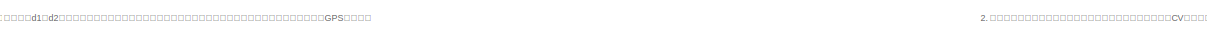
[diagram: root canvas - part 1/13, top left region]
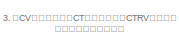
[diagram: root canvas - part 2/13, top center region]
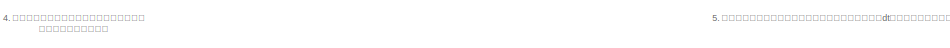
[diagram: root canvas - part 3/13, top center region]
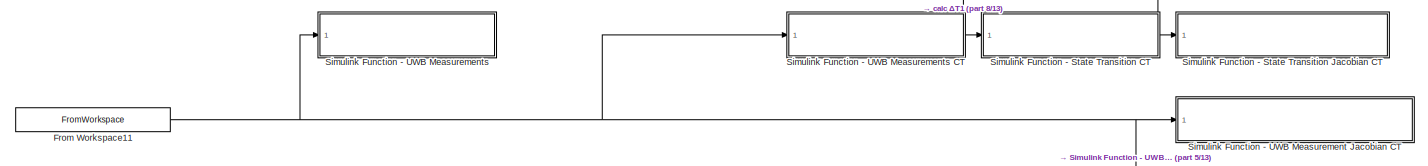
[diagram: root canvas - part 4/13, top center region]
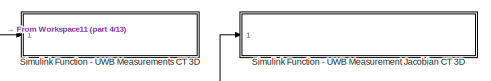
[diagram: root canvas - part 5/13, top center region]
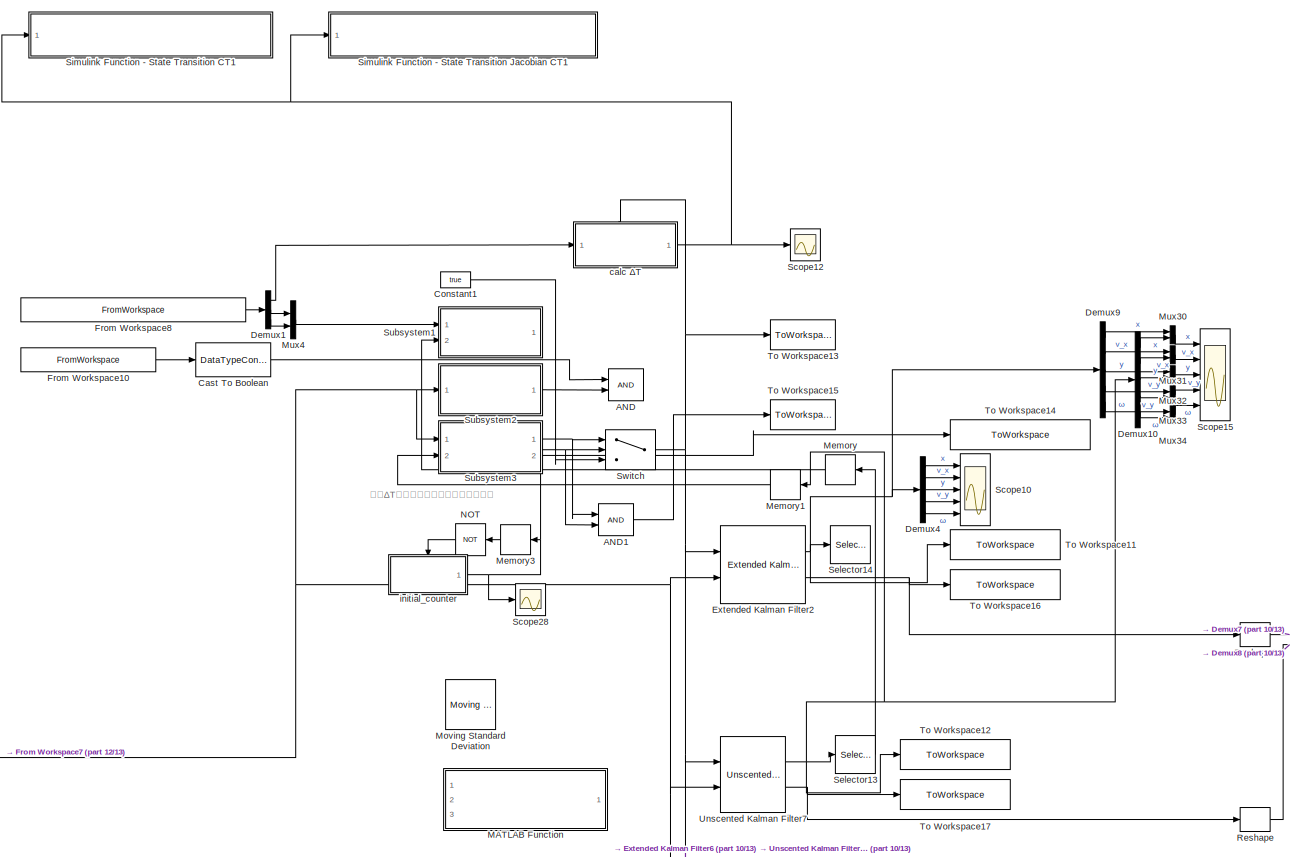
[diagram: root canvas - part 6/13, middle right region]
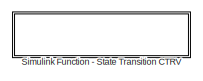
[diagram: root canvas - part 7/13, top right region]
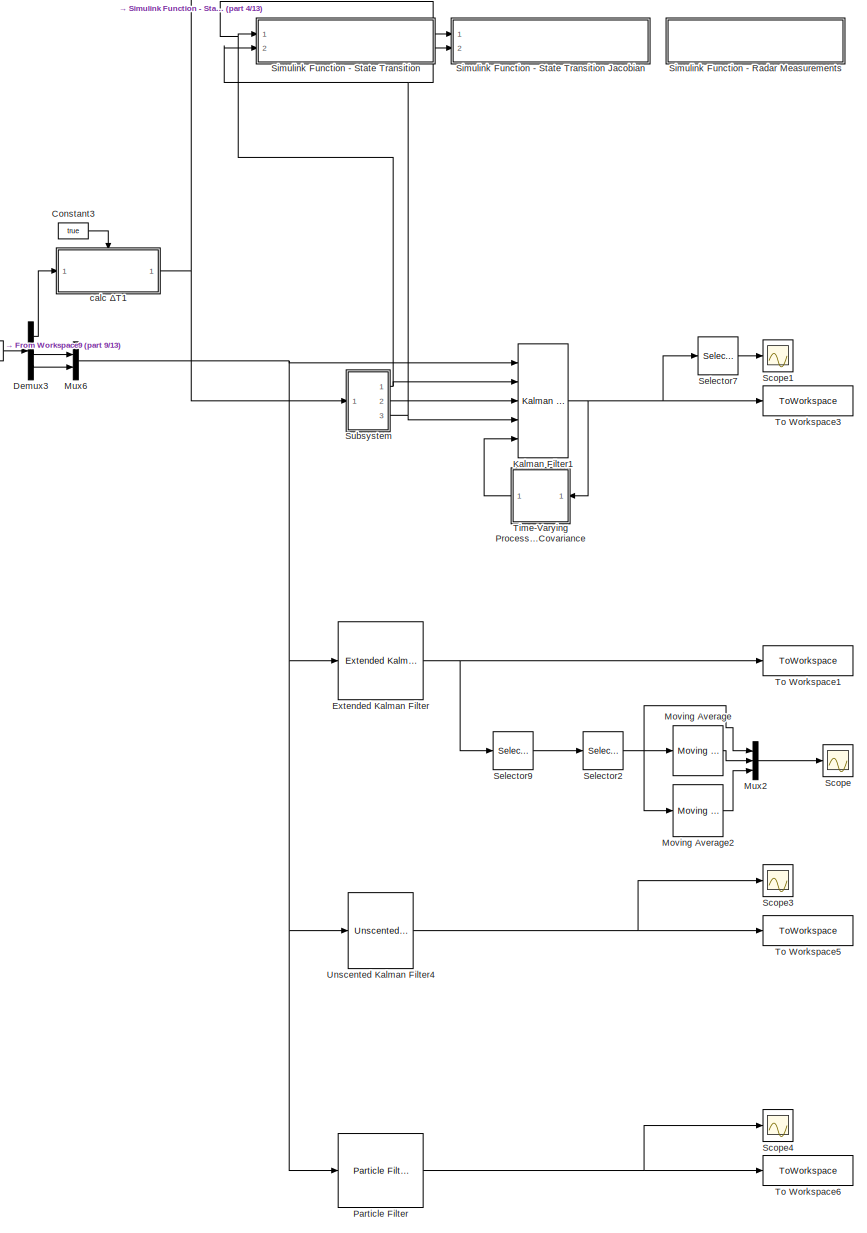
[diagram: root canvas - part 8/13, middle left region]
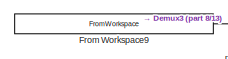
[diagram: root canvas - part 9/13, middle left region]
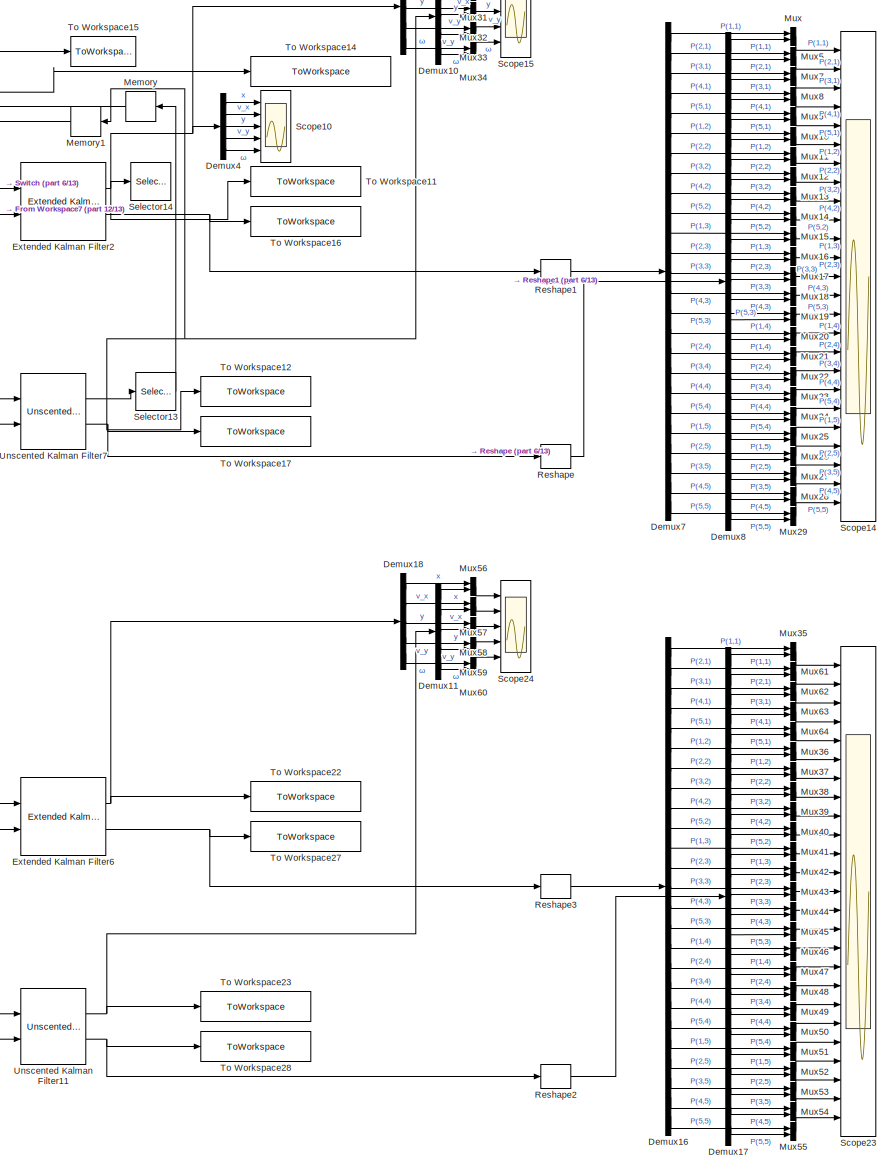
[diagram: root canvas - part 10/13, bottom right region]
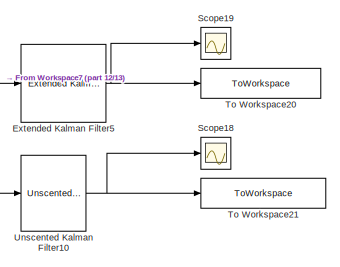
[diagram: root canvas - part 11/13, central region]
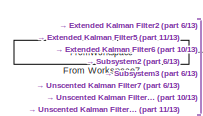
[diagram: root canvas - part 12/13, middle left region]
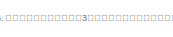
[diagram: root canvas - part 13/13, bottom center region]
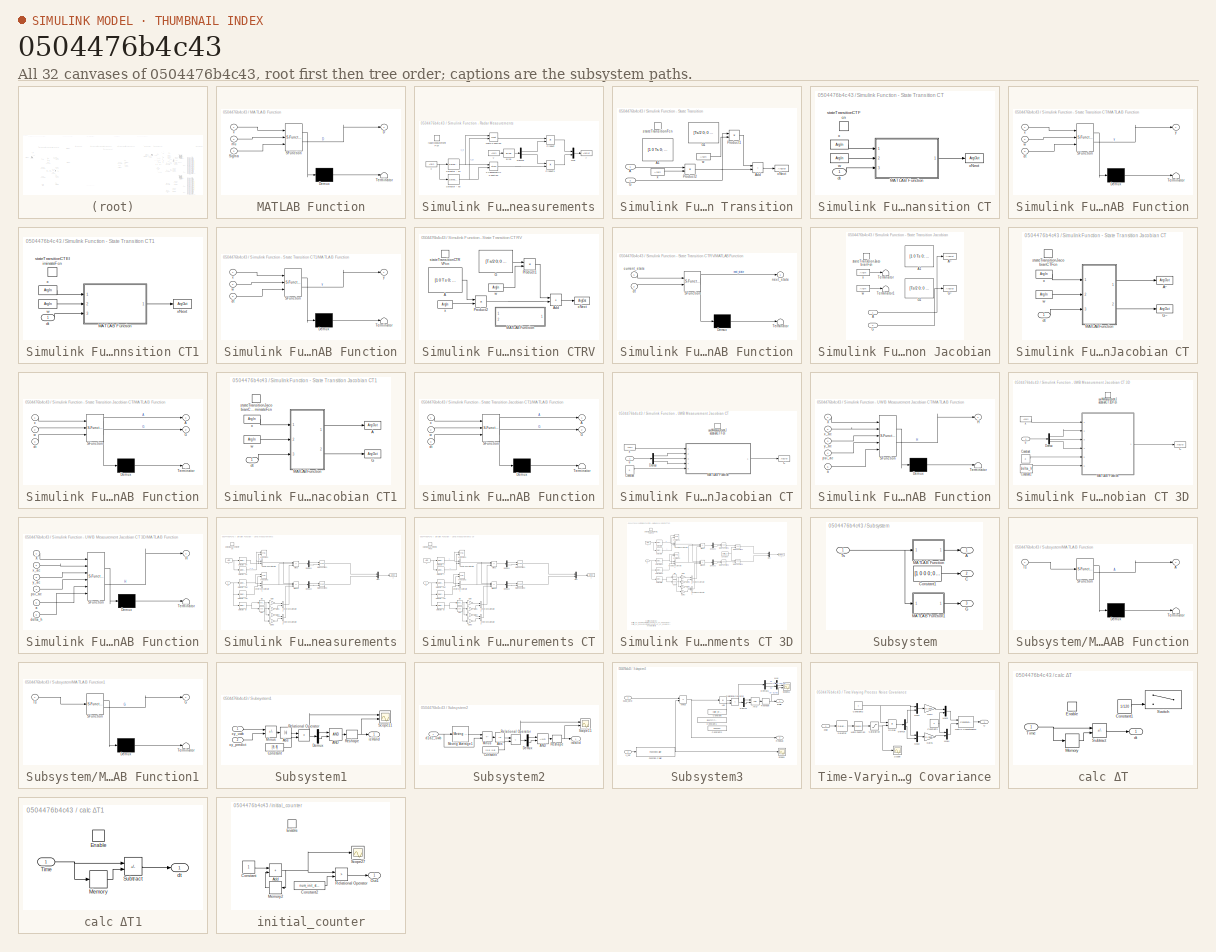
[diagram: thumbnail index - all 32 canvases of the model, root first then tree order]
MODEL slx_0504476b4c43
KIND model
CONFIG AbsTol = auto
CONFIG EnableMultiTasking = off
CONFIG FixedStep = Ts
CONFIG MaxStep = Ts
CONFIG MinStep = auto
CONFIG RelTol = 1e-3
CONFIG SampleTimeConstraint = Unconstrained
CONFIG SolverName = FixedStepDiscrete
CONFIG StartTime = 0.0
CONFIG StopTime = length(time_uwb)-1
BLOCK [Logic] AND
  AllPortsSameDT = off
  IconShape = distinctive
  OutDataTypeStr = boolean
  Ports = [2, 1]
BLOCK [Logic] AND1
  AllPortsSameDT = off
  IconShape = distinctive
  OutDataTypeStr = boolean
  Ports = [2, 1]
BLOCK [DataTypeConversion] Cast To Boolean
  OutDataTypeStr = boolean
  RndMeth = Floor
  SaturateOnIntegerOverflow = off
BLOCK [Constant] Constant1
  Value = true
BLOCK [Constant] Constant3
  Value = true
BLOCK [Demux] Demux1
  Outputs = 3
  Ports = [1, 3]
BLOCK [Demux] Demux10
  Outputs = 5
  Ports = [1, 5]
BLOCK [Demux] Demux11
  Commented = on
  Outputs = 5
  Ports = [1, 5]
BLOCK [Demux] Demux16
  Commented = on
  Outputs = 25
  Ports = [1, 25]
BLOCK [Demux] Demux17
  Commented = on
  Outputs = 25
  Ports = [1, 25]
BLOCK [Demux] Demux18
  Commented = on
  Outputs = 5
  Ports = [1, 5]
BLOCK [Demux] Demux3
  Outputs = 3
  Ports = [1, 3]
BLOCK [Demux] Demux4
  Commented = on
  Outputs = 5
  Ports = [1, 5]
BLOCK [Demux] Demux7
  Outputs = 25
  Ports = [1, 25]
BLOCK [Demux] Demux8
  Outputs = 25
  Ports = [1, 25]
BLOCK [Demux] Demux9
  Outputs = 5
  Ports = [1, 5]
BLOCK [Reference] Extended Kalman Filter  REF=sharedTrackingLibrary/Extended Kalman Filter
  Ports = [1, 1]
  SourceBlock = sharedTrackingLibrary/Extended Kalman Filter
  SourceProductBaseCode = CT,DR,TF,ID,LP,NV,AR,RO,RR,UV,VE
  SourceType = Extended Kalman Filter
BLOCK [Reference] Extended Kalman Filter2  REF=sharedTrackingLibrary/Extended Kalman Filter
  Ports = [2, 2]
  SourceBlock = sharedTrackingLibrary/Extended Kalman Filter
  SourceProductBaseCode = CT,DR,TF,ID,LP,NV,AR,RO,RR,UV,VE
  SourceType = Extended Kalman Filter
BLOCK [Reference] Extended Kalman Filter5  REF=sharedTrackingLibrary/Extended Kalman Filter
  Ports = [1, 1]
  SourceBlock = sharedTrackingLibrary/Extended Kalman Filter
  SourceProductBaseCode = CT,DR,TF,ID,LP,NV,AR,RO,RR,UV,VE
  SourceType = Extended Kalman Filter
BLOCK [Reference] Extended Kalman Filter6  REF=sharedTrackingLibrary/Extended Kalman Filter
  Ports = [2, 2]
  SourceBlock = sharedTrackingLibrary/Extended Kalman Filter
  SourceProductBaseCode = CT,DR,TF,ID,LP,NV,AR,RO,RR,UV,VE
  SourceType = Extended Kalman Filter
BLOCK [FromWorkspace] From Workspace10
  Interpolate = off
  OutputAfterFinalValue = Setting to zero
  SampleTime = -1
  VariableName = [[0:length(time_uwb)-1].',valid_raw]
BLOCK [FromWorkspace] From Workspace11
  Interpolate = off
  OutputAfterFinalValue = Setting to zero
  SampleTime = -1
  VariableName = [[0:length(time_uwb)-1].',lidar_pos,theta]
BLOCK [FromWorkspace] From Workspace7
  Interpolate = off
  OutputAfterFinalValue = Setting to zero
  SampleTime = -1
  VariableName = [[0:length(time_uwb)-1].',RawD1m,RawD2m]
BLOCK [FromWorkspace] From Workspace8
  Interpolate = off
  OutputAfterFinalValue = Setting to zero
  SampleTime = -1
  VariableName = [[0:length(time_uwb)-1].',time_uwb,uwb_raw_global_lidar]
BLOCK [FromWorkspace] From Workspace9
  SampleTime = -1
  VariableName = [[0:length(time_uwb)-1].',time_uwb,uwb_global_lidar]
BLOCK [Reference] Kalman Filter1  REF=ctrlSharedLib/Kalman Filter
  Ports = [5, 1]
  SourceBlock = ctrlSharedLib/Kalman Filter
  SourceProductBaseCode = CT,ID
  SourceType = ctrlKalmanFilter
BLOCK [SubSystem] MATLAB Function
  Commented = on
  ErrorFcn = Stateflow.Translate.translate
  PermitHierarchicalResolution = ExplicitOnly
  Ports = [3, 1]
  RequestExecContextInheritance = off
  SFBlockType = MATLAB Function
  TreatAsAtomicUnit = on
BLOCK [Demux] MATLAB Function/ Demux 
  Outputs = 1
  Ports = [1, 1]
BLOCK [S-Function] MATLAB Function/ SFunction 
  EnableBusSupport = on
  FunctionName = sf_sfun
  PortCounts = [3 2]
  Ports = [3, 2]
  SFcnIsStateOwnerBlock = off
  SFunctionDeploymentMode = off
  Tag = Stateflow S-Function 10
BLOCK [Terminator] MATLAB Function/ Terminator 
BLOCK [Outport] MATLAB Function/D
BLOCK [Inport] MATLAB Function/Sigma
  Port = 3
BLOCK [Inport] MATLAB Function/mu
  Port = 2
BLOCK [Inport] MATLAB Function/x
BLOCK [Memory] Memory
  InheritSampleTime = on
  InitialCondition = [25, 0]
  NameLocation = top
BLOCK [Memory] Memory1
  InheritSampleTime = on
  InitialCondition = [28; 0.2; 0.01; 0.2; 0.001]
  NameLocation = top
BLOCK [Memory] Memory3
  InheritSampleTime = on
  NameLocation = top
BLOCK [Reference] Moving Average  REF=dspstat3/Moving
Average
  Commented = on
  Ports = [1, 1]
  SourceBlock = dspstat3/Moving\nAverage
  SourceProductBaseCode = DS
  SourceType = dsp.simulink.MovingAverage
BLOCK [Reference] Moving Average2  REF=dspstat3/Moving
Average
  Commented = on
  Ports = [1, 1]
  SourceBlock = dspstat3/Moving\nAverage
  SourceProductBaseCode = DS
  SourceType = dsp.simulink.MovingAverage
BLOCK [Reference] Moving Standard Deviation  REF=dspstat3/Moving
Standard
Deviation
  Commented = on
  Ports = [1, 1]
  SourceBlock = dspstat3/Moving\nStandard\nDeviation
  SourceProductBaseCode = DS
  SourceType = dsp.simulink.MovingStandardDeviation
BLOCK [Mux] Mux
  DisplayOption = bar
  Inputs = 2
  Ports = [2, 1]
BLOCK [Mux] Mux10
  DisplayOption = bar
  Inputs = 2
  Ports = [2, 1]
BLOCK [Mux] Mux11
  DisplayOption = bar
  Inputs = 2
  Ports = [2, 1]
BLOCK [Mux] Mux12
  DisplayOption = bar
  Inputs = 2
  Ports = [2, 1]
BLOCK [Mux] Mux13
  DisplayOption = bar
  Inputs = 2
  Ports = [2, 1]
BLOCK [Mux] Mux14
  DisplayOption = bar
  Inputs = 2
  Ports = [2, 1]
BLOCK [Mux] Mux15
  DisplayOption = bar
  Inputs = 2
  Ports = [2, 1]
BLOCK [Mux] Mux16
  DisplayOption = bar
  Inputs = 2
  Ports = [2, 1]
BLOCK [Mux] Mux17
  DisplayOption = bar
  Inputs = 2
  Ports = [2, 1]
BLOCK [Mux] Mux18
  DisplayOption = bar
  Inputs = 2
  Ports = [2, 1]
BLOCK [Mux] Mux19
  DisplayOption = bar
  Inputs = 2
  Ports = [2, 1]
BLOCK [Mux] Mux2
  Commented = on
  DisplayOption = bar
  Inputs = 3
  Ports = [3, 1]
BLOCK [Mux] Mux20
  DisplayOption = bar
  Inputs = 2
  Ports = [2, 1]
BLOCK [Mux] Mux21
  DisplayOption = bar
  Inputs = 2
  Ports = [2, 1]
BLOCK [Mux] Mux22
  DisplayOption = bar
  Inputs = 2
  Ports = [2, 1]
BLOCK [Mux] Mux23
  DisplayOption = bar
  Inputs = 2
  Ports = [2, 1]
BLOCK [Mux] Mux24
  DisplayOption = bar
  Inputs = 2
  Ports = [2, 1]
BLOCK [Mux] Mux25
  DisplayOption = bar
  Inputs = 2
  Ports = [2, 1]
BLOCK [Mux] Mux26
  DisplayOption = bar
  Inputs = 2
  Ports = [2, 1]
BLOCK [Mux] Mux27
  DisplayOption = bar
  Inputs = 2
  Ports = [2, 1]
BLOCK [Mux] Mux28
  DisplayOption = bar
  Inputs = 2
  Ports = [2, 1]
BLOCK [Mux] Mux29
  DisplayOption = bar
  Inputs = 2
  Ports = [2, 1]
BLOCK [Mux] Mux30
  DisplayOption = bar
  Inputs = 2
  Ports = [2, 1]
BLOCK [Mux] Mux31
  DisplayOption = bar
  Inputs = 2
  Ports = [2, 1]
BLOCK [Mux] Mux32
  DisplayOption = bar
  Inputs = 2
  Ports = [2, 1]
BLOCK [Mux] Mux33
  DisplayOption = bar
  Inputs = 2
  Ports = [2, 1]
BLOCK [Mux] Mux34
  DisplayOption = bar
  Inputs = 2
  Ports = [2, 1]
BLOCK [Mux] Mux35
  Commented = on
  DisplayOption = bar
  Inputs = 2
  Ports = [2, 1]
BLOCK [Mux] Mux36
  Commented = on
  DisplayOption = bar
  Inputs = 2
  Ports = [2, 1]
BLOCK [Mux] Mux37
  Commented = on
  DisplayOption = bar
  Inputs = 2
  Ports = [2, 1]
BLOCK [Mux] Mux38
  Commented = on
  DisplayOption = bar
  Inputs = 2
  Ports = [2, 1]
BLOCK [Mux] Mux39
  Commented = on
  DisplayOption = bar
  Inputs = 2
  Ports = [2, 1]
BLOCK [Mux] Mux4
  DisplayOption = bar
  Inputs = 2
  Ports = [2, 1]
BLOCK [Mux] Mux40
  Commented = on
  DisplayOption = bar
  Inputs = 2
  Ports = [2, 1]
BLOCK [Mux] Mux41
  Commented = on
  DisplayOption = bar
  Inputs = 2
  Ports = [2, 1]
BLOCK [Mux] Mux42
  Commented = on
  DisplayOption = bar
  Inputs = 2
  Ports = [2, 1]
BLOCK [Mux] Mux43
  Commented = on
  DisplayOption = bar
  Inputs = 2
  Ports = [2, 1]
BLOCK [Mux] Mux44
  Commented = on
  DisplayOption = bar
  Inputs = 2
  Ports = [2, 1]
BLOCK [Mux] Mux45
  Commented = on
  DisplayOption = bar
  Inputs = 2
  Ports = [2, 1]
BLOCK [Mux] Mux46
  Commented = on
  DisplayOption = bar
  Inputs = 2
  Ports = [2, 1]
BLOCK [Mux] Mux47
  Commented = on
  DisplayOption = bar
  Inputs = 2
  Ports = [2, 1]
BLOCK [Mux] Mux48
  Commented = on
  DisplayOption = bar
  Inputs = 2
  Ports = [2, 1]
BLOCK [Mux] Mux49
  Commented = on
  DisplayOption = bar
  Inputs = 2
  Ports = [2, 1]
BLOCK [Mux] Mux5
  DisplayOption = bar
  Inputs = 2
  Ports = [2, 1]
BLOCK [Mux] Mux50
  Commented = on
  DisplayOption = bar
  Inputs = 2
  Ports = [2, 1]
BLOCK [Mux] Mux51
  Commented = on
  DisplayOption = bar
  Inputs = 2
  Ports = [2, 1]
BLOCK [Mux] Mux52
  Commented = on
  DisplayOption = bar
  Inputs = 2
  Ports = [2, 1]
BLOCK [Mux] Mux53
  Commented = on
  DisplayOption = bar
  Inputs = 2
  Ports = [2, 1]
BLOCK [Mux] Mux54
  Commented = on
  DisplayOption = bar
  Inputs = 2
  Ports = [2, 1]
BLOCK [Mux] Mux55
  Commented = on
  DisplayOption = bar
  Inputs = 2
  Ports = [2, 1]
BLOCK [Mux] Mux56
  Commented = on
  DisplayOption = bar
  Inputs = 2
  Ports = [2, 1]
BLOCK [Mux] Mux57
  Commented = on
  DisplayOption = bar
  Inputs = 2
  Ports = [2, 1]
BLOCK [Mux] Mux58
  Commented = on
  DisplayOption = bar
  Inputs = 2
  Ports = [2, 1]
BLOCK [Mux] Mux59
  Commented = on
  DisplayOption = bar
  Inputs = 2
  Ports = [2, 1]
BLOCK [Mux] Mux6
  DisplayOption = bar
  Inputs = 2
  Ports = [2, 1]
BLOCK [Mux] Mux60
  Commented = on
  DisplayOption = bar
  Inputs = 2
  Ports = [2, 1]
BLOCK [Mux] Mux61
  Commented = on
  DisplayOption = bar
  Inputs = 2
  Ports = [2, 1]
BLOCK [Mux] Mux62
  Commented = on
  DisplayOption = bar
  Inputs = 2
  Ports = [2, 1]
BLOCK [Mux] Mux63
  Commented = on
  DisplayOption = bar
  Inputs = 2
  Ports = [2, 1]
BLOCK [Mux] Mux64
  Commented = on
  DisplayOption = bar
  Inputs = 2
  Ports = [2, 1]
BLOCK [Mux] Mux7
  DisplayOption = bar
  Inputs = 2
  Ports = [2, 1]
BLOCK [Mux] Mux8
  DisplayOption = bar
  Inputs = 2
  Ports = [2, 1]
BLOCK [Mux] Mux9
  DisplayOption = bar
  Inputs = 2
  Ports = [2, 1]
BLOCK [Logic] NOT
  AllPortsSameDT = off
  IconShape = distinctive
  NameLocation = top
  Operator = NOT
  OutDataTypeStr = boolean
  Ports = [1, 1]
BLOCK [Reference] Particle Filter  REF=sharedTrackingLibrary/Particle Filter
  Ports = [1, 1]
  SourceBlock = sharedTrackingLibrary/Particle Filter
  SourceProductBaseCode = CT,DR,TF,ID,LP,NV,AR,RO,RR,UV,VE
  SourceType = Particle Filter
BLOCK [Reshape] Reshape
  Ports = [1, 1]
BLOCK [Reshape] Reshape1
  Ports = [1, 1]
BLOCK [Reshape] Reshape2
  Ports = [1, 1]
BLOCK [Reshape] Reshape3
  Ports = [1, 1]
BLOCK [Scope] Scope
  Commented = on
  Floating = off
  NumInputPorts = 1
  Ports = [1]
  ScopeSpecificationString = Simulink.scopes.TimeScopeBlockCfg('CurrentConfiguration', extmgr.ConfigurationSet(extmgr.Configuration('Core','General UI',true),extmgr.Configuration('Core','Source UI',true),extmgr.Configuration('Sources','WiredSimulink',true),extmgr.Configuration('Visuals','Time Domain',true,'SerializedDisplays',{struct('MinYLimReal','-1276.92524','MaxYLimReal','6949.31936','YLabelReal','','MinYLimMag','  0.0000...<+1480ch>
BLOCK [Scope] Scope1
  Commented = on
  Floating = off
  NumInputPorts = 1
  Ports = [1]
  ScopeSpecificationString = Simulink.scopes.TimeScopeBlockCfg('CurrentConfiguration', extmgr.ConfigurationSet(extmgr.Configuration('Core','General UI',true),extmgr.Configuration('Core','Source UI',true),extmgr.Configuration('Sources','WiredSimulink',true,'DataLoggingVariableName','ScopeData1'),extmgr.Configuration('Visuals','Time Domain',true,'SerializedDisplays',{struct('MinYLimReal','-35.19512','MaxYLimReal','241.15458','Y...<+1488ch>
BLOCK [Scope] Scope10
  Commented = on
  Floating = off
  NumInputPorts = 5
  Ports = [5]
  ScopeSpecificationString = Simulink.scopes.TimeScopeBlockCfg('CurrentConfiguration', extmgr.ConfigurationSet(extmgr.Configuration('Core','General UI',true),extmgr.Configuration('Core','Source UI',true),extmgr.Configuration('Sources','WiredSimulink',true,'DataLoggingVariableName','ScopeData1'),extmgr.Configuration('Visuals','Time Domain',true,'SerializedDisplays',{struct('MinYLimReal','4.61006','MaxYLimReal','238.50942','YLa...<+4843ch>
BLOCK [Scope] Scope12
  Floating = off
  NumInputPorts = 1
  Ports = [1]
  ScopeSpecificationString = Simulink.scopes.TimeScopeBlockCfg('CurrentConfiguration', extmgr.ConfigurationSet(extmgr.Configuration('Core','General UI',true),extmgr.Configuration('Core','Source UI',true),extmgr.Configuration('Sources','WiredSimulink',true,'DataLoggingVariableName','ScopeData1'),extmgr.Configuration('Visuals','Time Domain',true,'SerializedDisplays',{struct('MinYLimReal','-0.30029','MaxYLimReal','2.70263','YLab...<+1483ch>
BLOCK [Scope] Scope14
  Floating = off
  NumInputPorts = 25
  Ports = [25]
  ScopeSpecificationString = Simulink.scopes.TimeScopeBlockCfg('CurrentConfiguration', extmgr.ConfigurationSet(extmgr.Configuration('Core','General UI',true),extmgr.Configuration('Core','Source UI',true),extmgr.Configuration('Sources','WiredSimulink',true,'DataLoggingVariableName','ScopeData1'),extmgr.Configuration('Visuals','Time Domain',true,'SerializedDisplays',{struct('MinYLimReal','-0.03208','MaxYLimReal','0.02208','YLab...<+18666ch>
BLOCK [Scope] Scope15
  Floating = off
  NumInputPorts = 5
  Ports = [5]
  ScopeSpecificationString = Simulink.scopes.TimeScopeBlockCfg('CurrentConfiguration', extmgr.ConfigurationSet(extmgr.Configuration('Core','General UI',true),extmgr.Configuration('Core','Source UI',true),extmgr.Configuration('Sources','WiredSimulink',true,'DataLoggingVariableName','ScopeData3'),extmgr.Configuration('Visuals','Time Domain',true,'SerializedDisplays',{struct('MinYLimReal','1.69078','MaxYLimReal','237.80292','YLa...<+4912ch>
BLOCK [Scope] Scope18
  Commented = on
  Floating = off
  NumInputPorts = 1
  Ports = [1]
  ScopeSpecificationString = Simulink.scopes.TimeScopeBlockCfg('CurrentConfiguration', extmgr.ConfigurationSet(extmgr.Configuration('Core','General UI',true),extmgr.Configuration('Core','Source UI',true),extmgr.Configuration('Sources','WiredSimulink',true,'DataLoggingVariableName','ScopeData1'),extmgr.Configuration('Visuals','Time Domain',true,'SerializedDisplays',{struct('MinYLimReal','-69.75726','MaxYLimReal','245.33689','Y...<+1603ch>
BLOCK [Scope] Scope19
  Commented = on
  Floating = off
  NumInputPorts = 1
  Ports = [1]
  ScopeSpecificationString = Simulink.scopes.TimeScopeBlockCfg('CurrentConfiguration', extmgr.ConfigurationSet(extmgr.Configuration('Core','General UI',true),extmgr.Configuration('Core','Source UI',true),extmgr.Configuration('Sources','WiredSimulink',true,'DataLoggingVariableName','ScopeData2'),extmgr.Configuration('Visuals','Time Domain',true,'SerializedDisplays',{struct('MinYLimReal','-43.03902','MaxYLimReal','242.05666','Y...<+1598ch>
BLOCK [Scope] Scope23
  Commented = on
  Floating = off
  NumInputPorts = 25
  Ports = [25]
  ScopeSpecificationString = Simulink.scopes.TimeScopeBlockCfg('CurrentConfiguration', extmgr.ConfigurationSet(extmgr.Configuration('Core','General UI',true),extmgr.Configuration('Core','Source UI',true),extmgr.Configuration('Sources','WiredSimulink',true,'DataLoggingVariableName','ScopeData6'),extmgr.Configuration('Visuals','Time Domain',true,'SerializedDisplays',{struct('MinYLimReal','-3.92319','MaxYLimReal','35.32625','YLa...<+18564ch>
BLOCK [Scope] Scope24
  Commented = on
  Floating = off
  NumInputPorts = 5
  Ports = [5]
  ScopeSpecificationString = Simulink.scopes.TimeScopeBlockCfg('CurrentConfiguration', extmgr.ConfigurationSet(extmgr.Configuration('Core','General UI',true),extmgr.Configuration('Core','Source UI',true),extmgr.Configuration('Sources','WiredSimulink',true,'DataLoggingVariableName','ScopeData7'),extmgr.Configuration('Visuals','Time Domain',true,'SerializedDisplays',{struct('MinYLimReal','4.61006','MaxYLimReal','238.50942','YLa...<+4867ch>
BLOCK [Scope] Scope28
  Commented = on
  Floating = off
  NumInputPorts = 1
  Ports = [1]
  ScopeSpecificationString = Simulink.scopes.TimeScopeBlockCfg('CurrentConfiguration', extmgr.ConfigurationSet(extmgr.Configuration('Core','General UI',true),extmgr.Configuration('Core','Source UI',true),extmgr.Configuration('Sources','WiredSimulink',true,'DataLoggingVariableName','ScopeData3'),extmgr.Configuration('Visuals','Time Domain',true,'SerializedDisplays',{struct('MinYLimReal','-1.00000','MaxYLimReal','1.00000','YLab...<+1493ch>
BLOCK [Scope] Scope3
  Commented = on
  Floating = off
  NumInputPorts = 1
  Ports = [1]
  ScopeSpecificationString = Simulink.scopes.TimeScopeBlockCfg('CurrentConfiguration', extmgr.ConfigurationSet(extmgr.Configuration('Core','General UI',true),extmgr.Configuration('Core','Source UI',true),extmgr.Configuration('Sources','WiredSimulink',true,'DataLoggingVariableName','ScopeData2'),extmgr.Configuration('Visuals','Time Domain',true,'SerializedDisplays',{struct('MinYLimReal','-35.8398','MaxYLimReal','241.33245','YL...<+1572ch>
BLOCK [Scope] Scope4
  Commented = on
  Floating = off
  NumInputPorts = 1
  Ports = [1]
  ScopeSpecificationString = Simulink.scopes.TimeScopeBlockCfg('CurrentConfiguration', extmgr.ConfigurationSet(extmgr.Configuration('Core','General UI',true),extmgr.Configuration('Core','Source UI',true),extmgr.Configuration('Sources','WiredSimulink',true,'DataLoggingVariableName','ScopeData1'),extmgr.Configuration('Visuals','Time Domain',true,'SerializedDisplays',{struct('MinYLimReal','-28.9151','MaxYLimReal','226.10632','YL...<+1535ch>
BLOCK [Selector] Selector13
  IndexOptions = Index vector (dialog)
  Indices = [1 3]
  InputPortWidth = 5
  OutputSizes = 1
  Ports = [1, 1]
BLOCK [Selector] Selector14
  IndexOptions = Index vector (dialog)
  Indices = [1 3]
  InputPortWidth = 5
  OutputSizes = 1
  Ports = [1, 1]
BLOCK [Selector] Selector2
  Commented = on
  IndexOptions = Index vector (dialog)
  Indices = 1
  InputPortWidth = 2
  OutputSizes = 1
  Ports = [1, 1]
BLOCK [Selector] Selector7
  Commented = on
  IndexOptions = Index vector (dialog)
  Indices = [1 2]
  InputPortWidth = 4
  OutputSizes = 1
  Ports = [1, 1]
BLOCK [Selector] Selector9
  Commented = on
  IndexOptions = Index vector (dialog)
  Indices = [1 2]
  InputPortWidth = 4
  OutputSizes = 1
  Ports = [1, 1]
BLOCK [SubSystem] Simulink Function - Radar Measurements
  Ports = [0, 0, 0, 1]
  RequestExecContextInheritance = off
  TreatAsAtomicUnit = on
BLOCK [Bias] Simulink Function - Radar Measurements/Bias
  Bias = 1
  SaturateOnIntegerOverflow = off
BLOCK [Demux] Simulink Function - Radar Measurements/Demux
  Outputs = 2
  Ports = [1, 2]
BLOCK [Math] Simulink Function - Radar Measurements/Math Function
  Operator = hypot
  Ports = [2, 1]
  SignedPower = on
BLOCK [Mux] Simulink Function - Radar Measurements/Mux
  DisplayOption = bar
  Inputs = 2
  Ports = [2, 1]
BLOCK [Product] Simulink Function - Radar Measurements/Product
  Ports = [2, 1]
BLOCK [Product] Simulink Function - Radar Measurements/Product1
  Ports = [2, 1]
BLOCK [Selector] Simulink Function - Radar Measurements/Selector - xe
  IndexOptions = Index vector (dialog)
  Indices = 1
  InputPortWidth = 4
  OutputSizes = 1
  Ports = [1, 1]
BLOCK [Selector] Simulink Function - Radar Measurements/Selector - xn
  IndexOptions = Index vector (dialog)
  Indices = 2
  InputPortWidth = 4
  OutputSizes = 1
  Ports = [1, 1]
BLOCK [Trigonometry] Simulink Function - Radar Measurements/Trigonometric Function
  Operator = atan2
  Ports = [2, 1]
BLOCK [TriggerPort] Simulink Function - Radar Measurements/radarMeasurementFcn
  FunctionName = radarMeasurementFcn
  IsSimulinkFunction = on
  Ports = []
  StatesWhenEnabling = held
  TriggerType = function-call
  VariantControl = Variant
BLOCK [ArgIn] Simulink Function - Radar Measurements/v
  ArgumentName = v
  DisableCoverage = on
  Port = 2
  PortDimensions = 2
BLOCK [ArgIn] Simulink Function - Radar Measurements/x
  ArgumentName = x
  DisableCoverage = on
  PortDimensions = 4
BLOCK [ArgOut] Simulink Function - Radar Measurements/y
  ArgumentName = y
  DisableCoverage = on
  PortDimensions = 2
BLOCK [SubSystem] Simulink Function - State Transition
  Ports = [2, 0, 0, 1]
  RequestExecContextInheritance = off
  TreatAsAtomicUnit = on
BLOCK [SubSystem] Simulink Function - State Transition CT
  Ports = [1, 0, 0, 1]
  RequestExecContextInheritance = off
  TreatAsAtomicUnit = on
BLOCK [SubSystem] Simulink Function - State Transition CT/MATLAB Function
  ErrorFcn = Stateflow.Translate.translate
  PermitHierarchicalResolution = ExplicitOnly
  Ports = [3, 1]
  RequestExecContextInheritance = off
  SFBlockType = MATLAB Function
  TreatAsAtomicUnit = on
BLOCK [Demux] Simulink Function - State Transition CT/MATLAB Function/ Demux 
  Outputs = 1
  Ports = [1, 1]
BLOCK [S-Function] Simulink Function - State Transition CT/MATLAB Function/ SFunction 
  EnableBusSupport = on
  FunctionName = sf_sfun
  PortCounts = [3 2]
  Ports = [3, 2]
  SFcnIsStateOwnerBlock = off
  SFunctionDeploymentMode = off
  Tag = Stateflow S-Function 2
BLOCK [Terminator] Simulink Function - State Transition CT/MATLAB Function/ Terminator 
BLOCK [Inport] Simulink Function - State Transition CT/MATLAB Function/dt
  Port = 3
BLOCK [Inport] Simulink Function - State Transition CT/MATLAB Function/w
  Port = 2
BLOCK [Inport] Simulink Function - State Transition CT/MATLAB Function/x
BLOCK [Outport] Simulink Function - State Transition CT/MATLAB Function/y
BLOCK [Inport] Simulink Function - State Transition CT/dt
BLOCK [TriggerPort] Simulink Function - State Transition CT/stateTransitionCTFcn
  FunctionName = stateTransitionCTFcn
  IsSimulinkFunction = on
  Ports = []
  StatesWhenEnabling = held
  TriggerType = function-call
  VariantControl = Variant
BLOCK [ArgIn] Simulink Function - State Transition CT/w
  ArgumentName = w
  Port = 2
  PortDimensions = 3
BLOCK [ArgIn] Simulink Function - State Transition CT/x
  ArgumentName = x
  DisableCoverage = on
  PortDimensions = 5
BLOCK [ArgOut] Simulink Function - State Transition CT/xNext
  ArgumentName = xNext
  DisableCoverage = on
  PortDimensions = 5
BLOCK [SubSystem] Simulink Function - State Transition CT1
  Ports = [1, 0, 0, 1]
  RequestExecContextInheritance = off
  TreatAsAtomicUnit = on
BLOCK [SubSystem] Simulink Function - State Transition CT1/MATLAB Function
  ErrorFcn = Stateflow.Translate.translate
  PermitHierarchicalResolution = ExplicitOnly
  Ports = [3, 1]
  RequestExecContextInheritance = off
  SFBlockType = MATLAB Function
  TreatAsAtomicUnit = on
BLOCK [Demux] Simulink Function - State Transition CT1/MATLAB Function/ Demux 
  Outputs = 1
  Ports = [1, 1]
BLOCK [S-Function] Simulink Function - State Transition CT1/MATLAB Function/ SFunction 
  EnableBusSupport = on
  FunctionName = sf_sfun
  PortCounts = [3 2]
  Ports = [3, 2]
  SFcnIsStateOwnerBlock = off
  SFunctionDeploymentMode = off
  Tag = Stateflow S-Function 8
BLOCK [Terminator] Simulink Function - State Transition CT1/MATLAB Function/ Terminator 
BLOCK [Inport] Simulink Function - State Transition CT1/MATLAB Function/dt
  Port = 3
BLOCK [Inport] Simulink Function - State Transition CT1/MATLAB Function/w
  Port = 2
BLOCK [Inport] Simulink Function - State Transition CT1/MATLAB Function/x
BLOCK [Outport] Simulink Function - State Transition CT1/MATLAB Function/y
BLOCK [Inport] Simulink Function - State Transition CT1/dt
BLOCK [TriggerPort] Simulink Function - State Transition CT1/stateTransitionCTEliminateFcn
  FunctionName = stateTransitionCTEliminateFcn
  IsSimulinkFunction = on
  Ports = []
  StatesWhenEnabling = held
  TriggerType = function-call
  VariantControl = Variant
BLOCK [ArgIn] Simulink Function - State Transition CT1/w
  ArgumentName = w
  Port = 2
  PortDimensions = 3
BLOCK [ArgIn] Simulink Function - State Transition CT1/x
  ArgumentName = x
  DisableCoverage = on
  PortDimensions = 5
BLOCK [ArgOut] Simulink Function - State Transition CT1/xNext
  ArgumentName = xNext
  DisableCoverage = on
  PortDimensions = 5
BLOCK [SubSystem] Simulink Function - State Transition CTRV
  Commented = on
  Ports = [0, 0, 0, 1]
  RequestExecContextInheritance = off
  TreatAsAtomicUnit = on
BLOCK [Constant] Simulink Function - State Transition CTRV/A
  Value = [1 0 Ts 0; 0 1 0 Ts; 0 0 1 0; 0 0 0 1]
BLOCK [Sum] Simulink Function - State Transition CTRV/Add
  IconShape = rectangular
  Ports = [2, 1]
BLOCK [Constant] Simulink Function - State Transition CTRV/G
  Value = [Ts/2 0; 0 Ts/2; 1 0; 0 1]
BLOCK [SubSystem] Simulink Function - State Transition CTRV/MATLAB Function
  ErrorFcn = Stateflow.Translate.translate
  PermitHierarchicalResolution = ExplicitOnly
  Ports = [2, 1]
  RequestExecContextInheritance = off
  SFBlockType = MATLAB Function
  TreatAsAtomicUnit = on
BLOCK [Demux] Simulink Function - State Transition CTRV/MATLAB Function/ Demux 
  Outputs = 1
  Ports = [1, 1]
BLOCK [S-Function] Simulink Function - State Transition CTRV/MATLAB Function/ SFunction 
  EnableBusSupport = on
  FunctionName = sf_sfun
  PortCounts = [2 2]
  Ports = [2, 2]
  SFcnIsStateOwnerBlock = off
  SFunctionDeploymentMode = off
  Tag = Stateflow S-Function 1
BLOCK [Terminator] Simulink Function - State Transition CTRV/MATLAB Function/ Terminator 
BLOCK [Inport] Simulink Function - State Transition CTRV/MATLAB Function/current_state
BLOCK [Inport] Simulink Function - State Transition CTRV/MATLAB Function/dt
  Port = 2
BLOCK [Outport] Simulink Function - State Transition CTRV/MATLAB Function/next_state
BLOCK [Product] Simulink Function - State Transition CTRV/Product1
  Multiplication = Matrix(*)
  Ports = [2, 1]
BLOCK [Product] Simulink Function - State Transition CTRV/Product2
  Multiplication = Matrix(*)
  Ports = [2, 1]
BLOCK [TriggerPort] Simulink Function - State Transition CTRV/stateTransitionCTRVFcn
  FunctionName = stateTransitionCTRVFcn
  IsSimulinkFunction = on
  Ports = []
  StatesWhenEnabling = held
  TriggerType = function-call
  VariantControl = Variant
BLOCK [ArgIn] Simulink Function - State Transition CTRV/w
  ArgumentName = w
  Port = 2
  PortDimensions = 2
BLOCK [ArgIn] Simulink Function - State Transition CTRV/x
  ArgumentName = x
  DisableCoverage = on
  PortDimensions = 4
BLOCK [ArgOut] Simulink Function - State Transition CTRV/xNext
  ArgumentName = xNext
  DisableCoverage = on
  PortDimensions = 4
BLOCK [SubSystem] Simulink Function - State Transition Jacobian
  Ports = [2, 0, 0, 1]
  RequestExecContextInheritance = off
  TreatAsAtomicUnit = on
BLOCK [SubSystem] Simulink Function - State Transition Jacobian CT
  Ports = [1, 0, 0, 1]
  RequestExecContextInheritance = off
  TreatAsAtomicUnit = on
BLOCK [ArgOut] Simulink Function - State Transition Jacobian CT/A~
  ArgumentName = A
  DisableCoverage = on
  PortDimensions = [5 5]
BLOCK [ArgOut] Simulink Function - State Transition Jacobian CT/G~
  ArgumentName = G
  Port = 2
  PortDimensions = [5 3]
BLOCK [SubSystem] Simulink Function - State Transition Jacobian CT/MATLAB Function
  ErrorFcn = Stateflow.Translate.translate
  PermitHierarchicalResolution = ExplicitOnly
  Ports = [3, 2]
  RequestExecContextInheritance = off
  SFBlockType = MATLAB Function
  TreatAsAtomicUnit = on
BLOCK [Demux] Simulink Function - State Transition Jacobian CT/MATLAB Function/ Demux 
  Outputs = 1
  Ports = [1, 1]
BLOCK [S-Function] Simulink Function - State Transition Jacobian CT/MATLAB Function/ SFunction 
  EnableBusSupport = on
  FunctionName = sf_sfun
  PortCounts = [3 3]
  Ports = [3, 3]
  SFcnIsStateOwnerBlock = off
  SFunctionDeploymentMode = off
  Tag = Stateflow S-Function 3
BLOCK [Terminator] Simulink Function - State Transition Jacobian CT/MATLAB Function/ Terminator 
BLOCK [Outport] Simulink Function - State Transition Jacobian CT/MATLAB Function/A
BLOCK [Outport] Simulink Function - State Transition Jacobian CT/MATLAB Function/G
  Port = 2
BLOCK [Inport] Simulink Function - State Transition Jacobian CT/MATLAB Function/dt
  Port = 3
BLOCK [Inport] Simulink Function - State Transition Jacobian CT/MATLAB Function/w
  Port = 2
BLOCK [Inport] Simulink Function - State Transition Jacobian CT/MATLAB Function/x
BLOCK [Inport] Simulink Function - State Transition Jacobian CT/dt
BLOCK [TriggerPort] Simulink Function - State Transition Jacobian CT/stateTransitionJacobianCTFcn
  FunctionName = stateTransitionJacobianCTFcn
  IsSimulinkFunction = on
  Ports = []
  StatesWhenEnabling = held
  TriggerType = function-call
  VariantControl = Variant
BLOCK [ArgIn] Simulink Function - State Transition Jacobian CT/w
  ArgumentName = w
  Port = 2
  PortDimensions = 3
BLOCK [ArgIn] Simulink Function - State Transition Jacobian CT/x
  ArgumentName = x
  DisableCoverage = on
  PortDimensions = 5
BLOCK [SubSystem] Simulink Function - State Transition Jacobian CT1
  Ports = [1, 0, 0, 1]
  RequestExecContextInheritance = off
  TreatAsAtomicUnit = on
BLOCK [ArgOut] Simulink Function - State Transition Jacobian CT1/A
  ArgumentName = A
  DisableCoverage = on
  PortDimensions = [5 5]
BLOCK [ArgOut] Simulink Function - State Transition Jacobian CT1/G
  ArgumentName = G
  Port = 2
  PortDimensions = [5 3]
BLOCK [SubSystem] Simulink Function - State Transition Jacobian CT1/MATLAB Function
  ErrorFcn = Stateflow.Translate.translate
  PermitHierarchicalResolution = ExplicitOnly
  Ports = [3, 2]
  RequestExecContextInheritance = off
  SFBlockType = MATLAB Function
  TreatAsAtomicUnit = on
BLOCK [Demux] Simulink Function - State Transition Jacobian CT1/MATLAB Function/ Demux 
  Outputs = 1
  Ports = [1, 1]
BLOCK [S-Function] Simulink Function - State Transition Jacobian CT1/MATLAB Function/ SFunction 
  EnableBusSupport = on
  FunctionName = sf_sfun
  PortCounts = [3 3]
  Ports = [3, 3]
  SFcnIsStateOwnerBlock = off
  SFunctionDeploymentMode = off
  Tag = Stateflow S-Function 9
BLOCK [Terminator] Simulink Function - State Transition Jacobian CT1/MATLAB Function/ Terminator 
BLOCK [Outport] Simulink Function - State Transition Jacobian CT1/MATLAB Function/A
BLOCK [Outport] Simulink Function - State Transition Jacobian CT1/MATLAB Function/G
  Port = 2
BLOCK [Inport] Simulink Function - State Transition Jacobian CT1/MATLAB Function/dt
  Port = 3
BLOCK [Inport] Simulink Function - State Transition Jacobian CT1/MATLAB Function/w
  Port = 2
BLOCK [Inport] Simulink Function - State Transition Jacobian CT1/MATLAB Function/x
BLOCK [Inport] Simulink Function - State Transition Jacobian CT1/dt
BLOCK [TriggerPort] Simulink Function - State Transition Jacobian CT1/stateTransitionJacobianCTEliminateFcn
  FunctionName = stateTransitionJacobianCTEliminateFcn
  IsSimulinkFunction = on
  Ports = []
  StatesWhenEnabling = held
  TriggerType = function-call
  VariantControl = Variant
BLOCK [ArgIn] Simulink Function - State Transition Jacobian CT1/w
  ArgumentName = w
  Port = 2
  PortDimensions = 3
BLOCK [ArgIn] Simulink Function - State Transition Jacobian CT1/x
  ArgumentName = x
  DisableCoverage = on
  PortDimensions = 5
BLOCK [Inport] Simulink Function - State Transition Jacobian/A
BLOCK [Constant] Simulink Function - State Transition Jacobian/A1
  Commented = on
  Value = [1 0 Ts 0; 0 1 0 Ts; 0 0 1 0; 0 0 0 1]
BLOCK [ArgOut] Simulink Function - State Transition Jacobian/A~
  ArgumentName = A
  DisableCoverage = on
  PortDimensions = [4 4]
BLOCK [Inport] Simulink Function - State Transition Jacobian/G
  Port = 2
BLOCK [Constant] Simulink Function - State Transition Jacobian/G1
  Commented = on
  Value = [Ts/2 0; 0 Ts/2; 1 0; 0 1]
BLOCK [ArgOut] Simulink Function - State Transition Jacobian/G~
  ArgumentName = G
  Port = 2
  PortDimensions = [4 2]
BLOCK [Terminator] Simulink Function - State Transition Jacobian/Terminator
BLOCK [Terminator] Simulink Function - State Transition Jacobian/Terminator1
BLOCK [TriggerPort] Simulink Function - State Transition Jacobian/stateTransitionJacobianFcn
  FunctionName = stateTransitionJacobianFcn
  IsSimulinkFunction = on
  Ports = []
  StatesWhenEnabling = held
  TriggerType = function-call
  VariantControl = Variant
BLOCK [ArgIn] Simulink Function - State Transition Jacobian/w
  ArgumentName = w
  Port = 2
  PortDimensions = 2
BLOCK [ArgIn] Simulink Function - State Transition Jacobian/x
  ArgumentName = x
  DisableCoverage = on
  PortDimensions = 4
BLOCK [Inport] Simulink Function - State Transition/A
BLOCK [Constant] Simulink Function - State Transition/A1
  Commented = on
  Value = [1 0 Ts 0; 0 1 0 Ts; 0 0 1 0; 0 0 0 1]
BLOCK [Sum] Simulink Function - State Transition/Add
  IconShape = rectangular
  Ports = [2, 1]
BLOCK [Inport] Simulink Function - State Transition/G
  Port = 2
BLOCK [Constant] Simulink Function - State Transition/G1
  Commented = on
  Value = [Ts/2 0; 0 Ts/2; 1 0; 0 1]
BLOCK [Product] Simulink Function - State Transition/Product1
  Multiplication = Matrix(*)
  Ports = [2, 1]
BLOCK [Product] Simulink Function - State Transition/Product2
  Multiplication = Matrix(*)
  Ports = [2, 1]
BLOCK [TriggerPort] Simulink Function - State Transition/stateTransitionFcn
  FunctionName = stateTransitionFcn
  IsSimulinkFunction = on
  Ports = []
  StatesWhenEnabling = held
  TriggerType = function-call
  VariantControl = Variant
BLOCK [ArgIn] Simulink Function - State Transition/w
  ArgumentName = w
  Port = 2
  PortDimensions = 2
BLOCK [ArgIn] Simulink Function - State Transition/x
  ArgumentName = x
  DisableCoverage = on
  PortDimensions = 4
BLOCK [ArgOut] Simulink Function - State Transition/xNext
  ArgumentName = xNext
  DisableCoverage = on
  PortDimensions = 4
BLOCK [SubSystem] Simulink Function - UWB Measurement Jacobian CT
  Ports = [1, 0, 0, 1]
  RequestExecContextInheritance = off
  TreatAsAtomicUnit = on
BLOCK [SubSystem] Simulink Function - UWB Measurement Jacobian CT 3D
  Ports = [1, 0, 0, 1]
  RequestExecContextInheritance = off
  TreatAsAtomicUnit = on
BLOCK [ArgOut] Simulink Function - UWB Measurement Jacobian CT 3D/C
  ArgumentName = C
  DisableCoverage = on
  PortDimensions = [2 5]
BLOCK [Constant] Simulink Function - UWB Measurement Jacobian CT 3D/Constant
  Value = a
BLOCK [Constant] Simulink Function - UWB Measurement Jacobian CT 3D/Constant1
  Value = delta_h
BLOCK [Demux] Simulink Function - UWB Measurement Jacobian CT 3D/Demux
  Outputs = 3
  Ports = [1, 3]
BLOCK [SubSystem] Simulink Function - UWB Measurement Jacobian CT 3D/MATLAB Function
  ErrorFcn = Stateflow.Translate.translate
  PermitHierarchicalResolution = ExplicitOnly
  Ports = [6, 1]
  RequestExecContextInheritance = off
  SFBlockType = MATLAB Function
  TreatAsAtomicUnit = on
BLOCK [Demux] Simulink Function - UWB Measurement Jacobian CT 3D/MATLAB Function/ Demux 
  Outputs = 1
  Ports = [1, 1]
BLOCK [S-Function] Simulink Function - UWB Measurement Jacobian CT 3D/MATLAB Function/ SFunction 
  EnableBusSupport = on
  FunctionName = sf_sfun
  PortCounts = [6 2]
  Ports = [6, 2]
  SFcnIsStateOwnerBlock = off
  SFunctionDeploymentMode = off
  Tag = Stateflow S-Function 5
BLOCK [Terminator] Simulink Function - UWB Measurement Jacobian CT 3D/MATLAB Function/ Terminator 
BLOCK [Outport] Simulink Function - UWB Measurement Jacobian CT 3D/MATLAB Function/H
BLOCK [Inport] Simulink Function - UWB Measurement Jacobian CT 3D/MATLAB Function/X
BLOCK [Inport] Simulink Function - UWB Measurement Jacobian CT 3D/MATLAB Function/a
  Port = 5
BLOCK [Inport] Simulink Function - UWB Measurement Jacobian CT 3D/MATLAB Function/delta_h
  Port = 6
BLOCK [Inport] Simulink Function - UWB Measurement Jacobian CT 3D/MATLAB Function/psi_ac
  Port = 4
BLOCK [Inport] Simulink Function - UWB Measurement Jacobian CT 3D/MATLAB Function/x_ac
  Port = 2
BLOCK [Inport] Simulink Function - UWB Measurement Jacobian CT 3D/MATLAB Function/y_ac
  Port = 3
BLOCK [Inport] Simulink Function - UWB Measurement Jacobian CT 3D/u
BLOCK [TriggerPort] Simulink Function - UWB Measurement Jacobian CT 3D/uwbMeasurementJacobianCT3DFcn
  FunctionName = uwbMeasurementJacobianCT3DFcn
  IsSimulinkFunction = on
  Ports = []
  StatesWhenEnabling = held
  TriggerType = function-call
  VariantControl = Variant
BLOCK [ArgIn] Simulink Function - UWB Measurement Jacobian CT 3D/x
  ArgumentName = x
  DisableCoverage = on
  PortDimensions = 5
BLOCK [ArgOut] Simulink Function - UWB Measurement Jacobian CT/C
  ArgumentName = C
  DisableCoverage = on
  PortDimensions = [2 5]
BLOCK [Constant] Simulink Function - UWB Measurement Jacobian CT/Constant
  Value = a
BLOCK [Demux] Simulink Function - UWB Measurement Jacobian CT/Demux
  Outputs = 3
  Ports = [1, 3]
BLOCK [SubSystem] Simulink Function - UWB Measurement Jacobian CT/MATLAB Function
  ErrorFcn = Stateflow.Translate.translate
  PermitHierarchicalResolution = ExplicitOnly
  Ports = [5, 1]
  RequestExecContextInheritance = off
  SFBlockType = MATLAB Function
  TreatAsAtomicUnit = on
BLOCK [Demux] Simulink Function - UWB Measurement Jacobian CT/MATLAB Function/ Demux 
  Outputs = 1
  Ports = [1, 1]
BLOCK [S-Function] Simulink Function - UWB Measurement Jacobian CT/MATLAB Function/ SFunction 
  EnableBusSupport = on
  FunctionName = sf_sfun
  PortCounts = [5 2]
  Ports = [5, 2]
  SFcnIsStateOwnerBlock = off
  SFunctionDeploymentMode = off
  Tag = Stateflow S-Function 4
BLOCK [Terminator] Simulink Function - UWB Measurement Jacobian CT/MATLAB Function/ Terminator 
BLOCK [Outport] Simulink Function - UWB Measurement Jacobian CT/MATLAB Function/H
BLOCK [Inport] Simulink Function - UWB Measurement Jacobian CT/MATLAB Function/X
BLOCK [Inport] Simulink Function - UWB Measurement Jacobian CT/MATLAB Function/a
  Port = 5
BLOCK [Inport] Simulink Function - UWB Measurement Jacobian CT/MATLAB Function/psi_ac
  Port = 4
BLOCK [Inport] Simulink Function - UWB Measurement Jacobian CT/MATLAB Function/x_ac
  Port = 2
BLOCK [Inport] Simulink Function - UWB Measurement Jacobian CT/MATLAB Function/y_ac
  Port = 3
BLOCK [Inport] Simulink Function - UWB Measurement Jacobian CT/u
BLOCK [TriggerPort] Simulink Function - UWB Measurement Jacobian CT/uwbMeasurementJacobianCTFcn
  FunctionName = uwbMeasurementJacobianCTFcn
  IsSimulinkFunction = on
  Ports = []
  StatesWhenEnabling = held
  TriggerType = function-call
  VariantControl = Variant
BLOCK [ArgIn] Simulink Function - UWB Measurement Jacobian CT/x
  ArgumentName = x
  DisableCoverage = on
  PortDimensions = 5
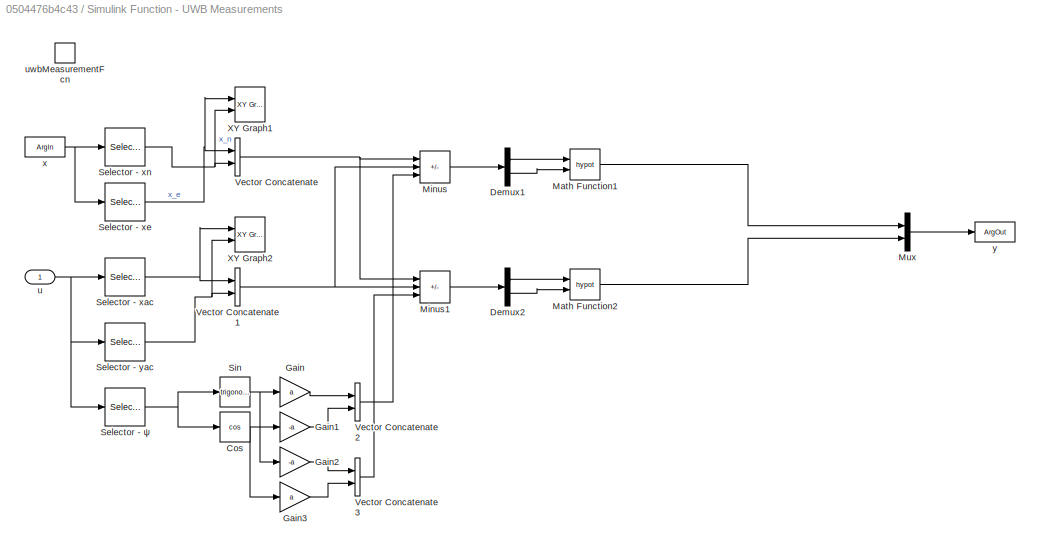
BLOCK [SubSystem] Simulink Function - UWB Measurements
  Ports = [1, 0, 0, 1]
  RequestExecContextInheritance = off
  TreatAsAtomicUnit = on
BLOCK [SubSystem] Simulink Function - UWB Measurements CT
  Ports = [1, 0, 0, 1]
  RequestExecContextInheritance = off
  TreatAsAtomicUnit = on
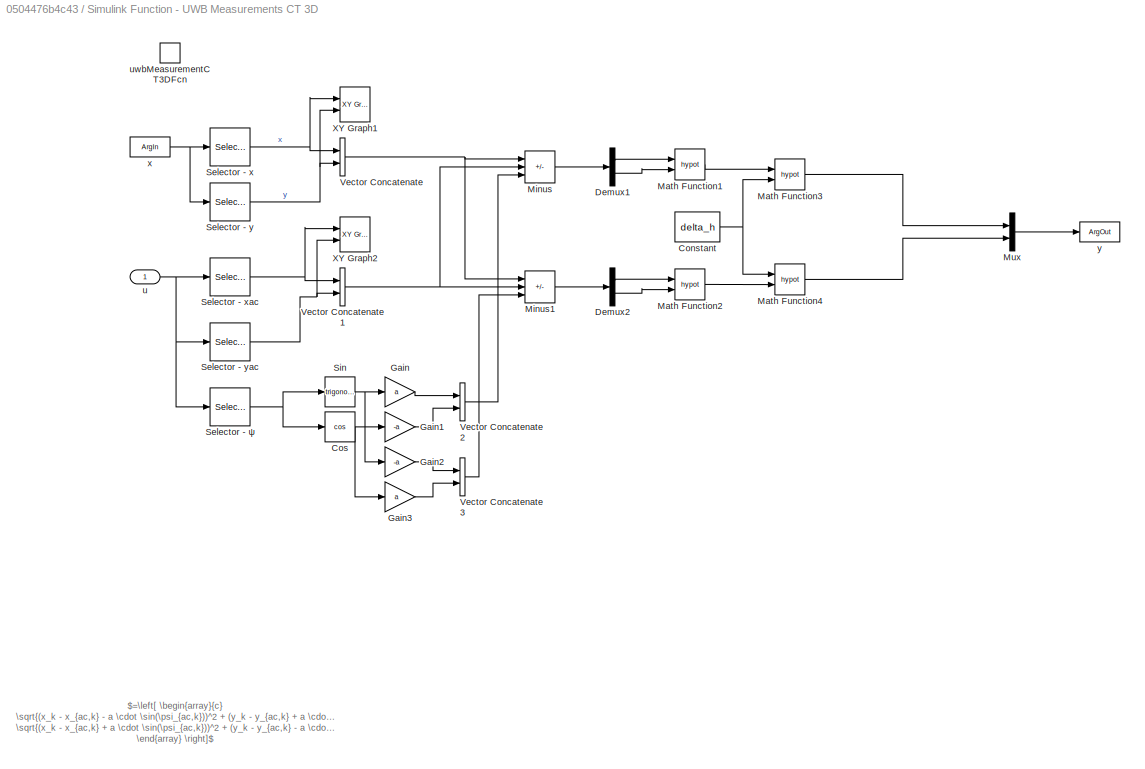
BLOCK [SubSystem] Simulink Function - UWB Measurements CT 3D
  Ports = [1, 0, 0, 1]
  RequestExecContextInheritance = off
  TreatAsAtomicUnit = on
BLOCK [Constant] Simulink Function - UWB Measurements CT 3D/Constant
  Value = delta_h
BLOCK [Trigonometry] Simulink Function - UWB Measurements CT 3D/Cos
  Operator = cos
  Ports = [1, 1]
BLOCK [Demux] Simulink Function - UWB Measurements CT 3D/Demux1
  Outputs = 2
  Ports = [1, 2]
BLOCK [Demux] Simulink Function - UWB Measurements CT 3D/Demux2
  Outputs = 2
  Ports = [1, 2]
BLOCK [Gain] Simulink Function - UWB Measurements CT 3D/Gain
  Gain = a
BLOCK [Gain] Simulink Function - UWB Measurements CT 3D/Gain1
  Gain = -a
BLOCK [Gain] Simulink Function - UWB Measurements CT 3D/Gain2
  Gain = -a
BLOCK [Gain] Simulink Function - UWB Measurements CT 3D/Gain3
  Gain = a
BLOCK [Math] Simulink Function - UWB Measurements CT 3D/Math Function1
  Operator = hypot
  Ports = [2, 1]
  SignedPower = on
BLOCK [Math] Simulink Function - UWB Measurements CT 3D/Math Function2
  Operator = hypot
  Ports = [2, 1]
  SignedPower = on
BLOCK [Math] Simulink Function - UWB Measurements CT 3D/Math Function3
  Operator = hypot
  Ports = [2, 1]
  SignedPower = on
BLOCK [Math] Simulink Function - UWB Measurements CT 3D/Math Function4
  Operator = hypot
  Ports = [2, 1]
  SignedPower = on
BLOCK [Sum] Simulink Function - UWB Measurements CT 3D/Minus
  IconShape = rectangular
  Inputs = +--
  Ports = [3, 1]
BLOCK [Sum] Simulink Function - UWB Measurements CT 3D/Minus1
  IconShape = rectangular
  Inputs = +--
  Ports = [3, 1]
BLOCK [Mux] Simulink Function - UWB Measurements CT 3D/Mux
  DisplayOption = bar
  Inputs = 2
  Ports = [2, 1]
BLOCK [Selector] Simulink Function - UWB Measurements CT 3D/Selector - x
  IndexOptions = Index vector (dialog)
  Indices = 1
  InputPortWidth = 5
  OutputSizes = 1
  Ports = [1, 1]
BLOCK [Selector] Simulink Function - UWB Measurements CT 3D/Selector - xac
  IndexOptions = Index vector (dialog)
  Indices = 1
  InputPortWidth = 3
  OutputSizes = 1
  Ports = [1, 1]
BLOCK [Selector] Simulink Function - UWB Measurements CT 3D/Selector - y
  IndexOptions = Index vector (dialog)
  Indices = 3
  InputPortWidth = 5
  OutputSizes = 1
  Ports = [1, 1]
BLOCK [Selector] Simulink Function - UWB Measurements CT 3D/Selector - yac
  IndexOptions = Index vector (dialog)
  Indices = 2
  InputPortWidth = 3
  OutputSizes = 1
  Ports = [1, 1]
BLOCK [Selector] Simulink Function - UWB Measurements CT 3D/Selector - ψ
  IndexOptions = Index vector (dialog)
  Indices = 3
  InputPortWidth = 3
  OutputSizes = 1
  Ports = [1, 1]
BLOCK [Trigonometry] Simulink Function - UWB Measurements CT 3D/Sin
  Ports = [1, 1]
BLOCK [Concatenate] Simulink Function - UWB Measurements CT 3D/Vector Concatenate
  Ports = [2, 1]
BLOCK [Concatenate] Simulink Function - UWB Measurements CT 3D/Vector Concatenate1
  Ports = [2, 1]
BLOCK [Concatenate] Simulink Function - UWB Measurements CT 3D/Vector Concatenate2
  Ports = [2, 1]
BLOCK [Concatenate] Simulink Function - UWB Measurements CT 3D/Vector Concatenate3
  Ports = [2, 1]
BLOCK [Reference] Simulink Function - UWB Measurements CT 3D/XY Graph1  REF=simulink/Sinks/XY Graph
  Commented = on
  Ports = [2]
  SourceBlock = simulink/Sinks/XY Graph
  SourceProductBaseCode = SL
  SourceType = XY scope.
BLOCK [Reference] Simulink Function - UWB Measurements CT 3D/XY Graph2  REF=simulink/Sinks/XY Graph
  Commented = on
  Ports = [2]
  SourceBlock = simulink/Sinks/XY Graph
  SourceProductBaseCode = SL
  SourceType = XY scope.
BLOCK [Inport] Simulink Function - UWB Measurements CT 3D/u
BLOCK [TriggerPort] Simulink Function - UWB Measurements CT 3D/uwbMeasurementCT3DFcn
  FunctionName = uwbMeasurementCT3DFcn
  IsSimulinkFunction = on
  Ports = []
  StatesWhenEnabling = held
  TriggerType = function-call
  VariantControl = Variant
BLOCK [ArgIn] Simulink Function - UWB Measurements CT 3D/x
  ArgumentName = x
  DisableCoverage = on
  PortDimensions = 5
BLOCK [ArgOut] Simulink Function - UWB Measurements CT 3D/y
  ArgumentName = y
  DisableCoverage = on
  PortDimensions = 2
BLOCK [Trigonometry] Simulink Function - UWB Measurements CT/Cos
  Operator = cos
  Ports = [1, 1]
BLOCK [Demux] Simulink Function - UWB Measurements CT/Demux1
  Outputs = 2
  Ports = [1, 2]
BLOCK [Demux] Simulink Function - UWB Measurements CT/Demux2
  Outputs = 2
  Ports = [1, 2]
BLOCK [Gain] Simulink Function - UWB Measurements CT/Gain
  Gain = a
BLOCK [Gain] Simulink Function - UWB Measurements CT/Gain1
  Gain = -a
BLOCK [Gain] Simulink Function - UWB Measurements CT/Gain2
  Gain = -a
BLOCK [Gain] Simulink Function - UWB Measurements CT/Gain3
  Gain = a
BLOCK [Math] Simulink Function - UWB Measurements CT/Math Function1
  Operator = hypot
  Ports = [2, 1]
  SignedPower = on
BLOCK [Math] Simulink Function - UWB Measurements CT/Math Function2
  Operator = hypot
  Ports = [2, 1]
  SignedPower = on
BLOCK [Sum] Simulink Function - UWB Measurements CT/Minus
  IconShape = rectangular
  Inputs = +--
  Ports = [3, 1]
BLOCK [Sum] Simulink Function - UWB Measurements CT/Minus1
  IconShape = rectangular
  Inputs = +--
  Ports = [3, 1]
BLOCK [Mux] Simulink Function - UWB Measurements CT/Mux
  DisplayOption = bar
  Inputs = 2
  Ports = [2, 1]
BLOCK [Selector] Simulink Function - UWB Measurements CT/Selector - x
  IndexOptions = Index vector (dialog)
  Indices = 1
  InputPortWidth = 5
  OutputSizes = 1
  Ports = [1, 1]
BLOCK [Selector] Simulink Function - UWB Measurements CT/Selector - xac
  IndexOptions = Index vector (dialog)
  Indices = 1
  InputPortWidth = 3
  OutputSizes = 1
  Ports = [1, 1]
BLOCK [Selector] Simulink Function - UWB Measurements CT/Selector - y
  IndexOptions = Index vector (dialog)
  Indices = 3
  InputPortWidth = 5
  OutputSizes = 1
  Ports = [1, 1]
BLOCK [Selector] Simulink Function - UWB Measurements CT/Selector - yac
  IndexOptions = Index vector (dialog)
  Indices = 2
  InputPortWidth = 3
  OutputSizes = 1
  Ports = [1, 1]
BLOCK [Selector] Simulink Function - UWB Measurements CT/Selector - ψ
  IndexOptions = Index vector (dialog)
  Indices = 3
  InputPortWidth = 3
  OutputSizes = 1
  Ports = [1, 1]
BLOCK [Trigonometry] Simulink Function - UWB Measurements CT/Sin
  Ports = [1, 1]
BLOCK [Concatenate] Simulink Function - UWB Measurements CT/Vector Concatenate
  Ports = [2, 1]
BLOCK [Concatenate] Simulink Function - UWB Measurements CT/Vector Concatenate1
  Ports = [2, 1]
BLOCK [Concatenate] Simulink Function - UWB Measurements CT/Vector Concatenate2
  Ports = [2, 1]
BLOCK [Concatenate] Simulink Function - UWB Measurements CT/Vector Concatenate3
  Ports = [2, 1]
BLOCK [Reference] Simulink Function - UWB Measurements CT/XY Graph1  REF=simulink/Sinks/XY Graph
  Commented = on
  Ports = [2]
  SourceBlock = simulink/Sinks/XY Graph
  SourceProductBaseCode = SL
  SourceType = XY scope.
BLOCK [Reference] Simulink Function - UWB Measurements CT/XY Graph2  REF=simulink/Sinks/XY Graph
  Commented = on
  Ports = [2]
  SourceBlock = simulink/Sinks/XY Graph
  SourceProductBaseCode = SL
  SourceType = XY scope.
BLOCK [Inport] Simulink Function - UWB Measurements CT/u
BLOCK [TriggerPort] Simulink Function - UWB Measurements CT/uwbMeasurementCTFcn
  FunctionName = uwbMeasurementCTFcn
  IsSimulinkFunction = on
  Ports = []
  StatesWhenEnabling = held
  TriggerType = function-call
  VariantControl = Variant
BLOCK [ArgIn] Simulink Function - UWB Measurements CT/x
  ArgumentName = x
  DisableCoverage = on
  PortDimensions = 5
BLOCK [ArgOut] Simulink Function - UWB Measurements CT/y
  ArgumentName = y
  DisableCoverage = on
  PortDimensions = 2
BLOCK [Trigonometry] Simulink Function - UWB Measurements/Cos
  Operator = cos
  Ports = [1, 1]
BLOCK [Demux] Simulink Function - UWB Measurements/Demux1
  Outputs = 2
  Ports = [1, 2]
BLOCK [Demux] Simulink Function - UWB Measurements/Demux2
  Outputs = 2
  Ports = [1, 2]
BLOCK [Gain] Simulink Function - UWB Measurements/Gain
  Gain = a
BLOCK [Gain] Simulink Function - UWB Measurements/Gain1
  Gain = -a
BLOCK [Gain] Simulink Function - UWB Measurements/Gain2
  Gain = -a
BLOCK [Gain] Simulink Function - UWB Measurements/Gain3
  Gain = a
BLOCK [Math] Simulink Function - UWB Measurements/Math Function1
  Operator = hypot
  Ports = [2, 1]
  SignedPower = on
BLOCK [Math] Simulink Function - UWB Measurements/Math Function2
  Operator = hypot
  Ports = [2, 1]
  SignedPower = on
BLOCK [Sum] Simulink Function - UWB Measurements/Minus
  IconShape = rectangular
  Inputs = +--
  Ports = [3, 1]
BLOCK [Sum] Simulink Function - UWB Measurements/Minus1
  IconShape = rectangular
  Inputs = +--
  Ports = [3, 1]
BLOCK [Mux] Simulink Function - UWB Measurements/Mux
  DisplayOption = bar
  Inputs = 2
  Ports = [2, 1]
BLOCK [Selector] Simulink Function - UWB Measurements/Selector - xac
  IndexOptions = Index vector (dialog)
  Indices = 1
  InputPortWidth = 3
  OutputSizes = 1
  Ports = [1, 1]
BLOCK [Selector] Simulink Function - UWB Measurements/Selector - xe
  IndexOptions = Index vector (dialog)
  Indices = 1
  InputPortWidth = 4
  OutputSizes = 1
  Ports = [1, 1]
BLOCK [Selector] Simulink Function - UWB Measurements/Selector - xn
  IndexOptions = Index vector (dialog)
  Indices = 2
  InputPortWidth = 4
  OutputSizes = 1
  Ports = [1, 1]
BLOCK [Selector] Simulink Function - UWB Measurements/Selector - yac
  IndexOptions = Index vector (dialog)
  Indices = 2
  InputPortWidth = 3
  OutputSizes = 1
  Ports = [1, 1]
BLOCK [Selector] Simulink Function - UWB Measurements/Selector - ψ
  IndexOptions = Index vector (dialog)
  Indices = 3
  InputPortWidth = 3
  OutputSizes = 1
  Ports = [1, 1]
BLOCK [Trigonometry] Simulink Function - UWB Measurements/Sin
  Ports = [1, 1]
BLOCK [Concatenate] Simulink Function - UWB Measurements/Vector Concatenate
  Ports = [2, 1]
BLOCK [Concatenate] Simulink Function - UWB Measurements/Vector Concatenate1
  Ports = [2, 1]
BLOCK [Concatenate] Simulink Function - UWB Measurements/Vector Concatenate2
  Ports = [2, 1]
BLOCK [Concatenate] Simulink Function - UWB Measurements/Vector Concatenate3
  Ports = [2, 1]
BLOCK [Reference] Simulink Function - UWB Measurements/XY Graph1  REF=simulink/Sinks/XY Graph
  Commented = on
  Ports = [2]
  SourceBlock = simulink/Sinks/XY Graph
  SourceProductBaseCode = SL
  SourceType = XY scope.
BLOCK [Reference] Simulink Function - UWB Measurements/XY Graph2  REF=simulink/Sinks/XY Graph
  Commented = on
  Ports = [2]
  SourceBlock = simulink/Sinks/XY Graph
  SourceProductBaseCode = SL
  SourceType = XY scope.
BLOCK [Inport] Simulink Function - UWB Measurements/u
BLOCK [TriggerPort] Simulink Function - UWB Measurements/uwbMeasurementFcn
  FunctionName = uwbMeasurementFcn
  IsSimulinkFunction = on
  Ports = []
  StatesWhenEnabling = held
  TriggerType = function-call
  VariantControl = Variant
BLOCK [ArgIn] Simulink Function - UWB Measurements/x
  ArgumentName = x
  DisableCoverage = on
  PortDimensions = 4
BLOCK [ArgOut] Simulink Function - UWB Measurements/y
  ArgumentName = y
  DisableCoverage = on
  PortDimensions = 2
BLOCK [SubSystem] Subsystem
  Ports = [1, 3]
  RequestExecContextInheritance = off
BLOCK [Outport] Subsystem/A
BLOCK [Outport] Subsystem/C
  Port = 2
BLOCK [Constant] Subsystem/Constant1
  Value = [1 0 0 0; 0 1 0 0]
  VectorParams1D = off
BLOCK [Outport] Subsystem/G
  Port = 3
BLOCK [SubSystem] Subsystem/MATLAB Function
  ErrorFcn = Stateflow.Translate.translate
  PermitHierarchicalResolution = ExplicitOnly
  Ports = [1, 1]
  RequestExecContextInheritance = off
  SFBlockType = MATLAB Function
  TreatAsAtomicUnit = on
BLOCK [Demux] Subsystem/MATLAB Function/ Demux 
  Outputs = 1
  Ports = [1, 1]
BLOCK [S-Function] Subsystem/MATLAB Function/ SFunction 
  EnableBusSupport = on
  FunctionName = sf_sfun
  PortCounts = [1 2]
  Ports = [1, 2]
  SFcnIsStateOwnerBlock = off
  SFunctionDeploymentMode = off
  Tag = Stateflow S-Function 6
BLOCK [Terminator] Subsystem/MATLAB Function/ Terminator 
BLOCK [Outport] Subsystem/MATLAB Function/A
BLOCK [Inport] Subsystem/MATLAB Function/Ts
BLOCK [SubSystem] Subsystem/MATLAB Function1
  ErrorFcn = Stateflow.Translate.translate
  PermitHierarchicalResolution = ExplicitOnly
  Ports = [1, 1]
  RequestExecContextInheritance = off
  SFBlockType = MATLAB Function
  TreatAsAtomicUnit = on
BLOCK [Demux] Subsystem/MATLAB Function1/ Demux 
  Outputs = 1
  Ports = [1, 1]
BLOCK [S-Function] Subsystem/MATLAB Function1/ SFunction 
  EnableBusSupport = on
  FunctionName = sf_sfun
  PortCounts = [1 2]
  Ports = [1, 2]
  SFcnIsStateOwnerBlock = off
  SFunctionDeploymentMode = off
  Tag = Stateflow S-Function 7
BLOCK [Terminator] Subsystem/MATLAB Function1/ Terminator 
BLOCK [Outport] Subsystem/MATLAB Function1/G
BLOCK [Inport] Subsystem/MATLAB Function1/Ts
BLOCK [Inport] Subsystem/Ts
BLOCK [SubSystem] Subsystem1
  Ports = [2, 1]
  RequestExecContextInheritance = off
BLOCK [Logic] Subsystem1/AND
  AllPortsSameDT = off
  IconShape = distinctive
  OutDataTypeStr = boolean
  Ports = [2, 1]
BLOCK [Abs] Subsystem1/Abs
  SaturateOnIntegerOverflow = off
BLOCK [Constant] Subsystem1/Constant
  Value = [8; 8]
BLOCK [Demux] Subsystem1/Demux
  Outputs = 2
  Ports = [1, 2]
BLOCK [Sum] Subsystem1/Minus
  IconShape = rectangular
  Inputs = +-
  Ports = [2, 1]
BLOCK [RelationalOperator] Subsystem1/Relational Operator
  InputSameDT = off
  Operator = <
  OutDataTypeStr = boolean
  Ports = [2, 1]
  RndMeth = Simplest
BLOCK [Reshape] Subsystem1/Reshape
  Ports = [1, 1]
BLOCK [Scope] Subsystem1/Scope11
  Commented = on
  Floating = off
  NumInputPorts = 2
  Ports = [2]
  ScopeSpecificationString = Simulink.scopes.TimeScopeBlockCfg('CurrentConfiguration', extmgr.ConfigurationSet(extmgr.Configuration('Core','General UI',true),extmgr.Configuration('Core','Source UI',true),extmgr.Configuration('Sources','WiredSimulink',true,'DataLoggingVariableName','ScopeData3'),extmgr.Configuration('Visuals','Time Domain',true,'SerializedDisplays',{struct('MinYLimReal','-0.125','MaxYLimReal','1.125','YLabelRe...<+2055ch>
BLOCK [Outport] Subsystem1/isValid
BLOCK [Inport] Subsystem1/xy_predict
  Port = 2
BLOCK [Inport] Subsystem1/xy_uwb
BLOCK [SubSystem] Subsystem2
  Ports = [1, 1]
  RequestExecContextInheritance = off
BLOCK [Logic] Subsystem2/AND
  AllPortsSameDT = off
  IconShape = distinctive
  OutDataTypeStr = boolean
  Ports = [2, 1]
BLOCK [Abs] Subsystem2/Abs
  SaturateOnIntegerOverflow = off
BLOCK [Constant] Subsystem2/Constant
  Value = [0.6; 0.6]
BLOCK [Demux] Subsystem2/Demux
  Outputs = 2
  Ports = [1, 2]
BLOCK [Sum] Subsystem2/Minus
  IconShape = rectangular
  Inputs = +-
  Ports = [2, 1]
BLOCK [Reference] Subsystem2/Moving Average1  REF=dspstat3/Moving
Average
  Ports = [1, 1]
  SourceBlock = dspstat3/Moving\nAverage
  SourceProductBaseCode = DS
  SourceType = dsp.simulink.MovingAverage
BLOCK [RelationalOperator] Subsystem2/Relational Operator
  InputSameDT = off
  Operator = <
  OutDataTypeStr = boolean
  Ports = [2, 1]
  RndMeth = Simplest
BLOCK [Reshape] Subsystem2/Reshape
  Ports = [1, 1]
BLOCK [Scope] Subsystem2/Scope11
  Commented = on
  Floating = off
  NumInputPorts = 2
  Ports = [2]
  ScopeSpecificationString = Simulink.scopes.TimeScopeBlockCfg('CurrentConfiguration', extmgr.ConfigurationSet(extmgr.Configuration('Core','General UI',true),extmgr.Configuration('Core','Source UI',true),extmgr.Configuration('Sources','WiredSimulink',true,'DataLoggingVariableName','ScopeData3'),extmgr.Configuration('Visuals','Time Domain',true,'SerializedDisplays',{struct('MinYLimReal','-0.125','MaxYLimReal','1.125','YLabelRe...<+2078ch>
BLOCK [Inport] Subsystem2/d1d2_uwb
BLOCK [Outport] Subsystem2/isValid
BLOCK [SubSystem] Subsystem3
  Ports = [2, 2]
  RequestExecContextInheritance = off
BLOCK [Logic] Subsystem3/AND
  AllPortsSameDT = off
  IconShape = distinctive
  OutDataTypeStr = boolean
  Ports = [2, 1]
BLOCK [Abs] Subsystem3/Abs
  SaturateOnIntegerOverflow = off
BLOCK [Constant] Subsystem3/Constant
  Value = outlier_threshold
BLOCK [Constant] Subsystem3/Constant1
  Commented = on
  Value = [0.03727*7.5; 0.03621*7.5]
BLOCK [Constant] Subsystem3/Constant2
  Commented = on
  Value = [1.65; 1.65]
BLOCK [Demux] Subsystem3/Demux
  Outputs = 2
  Ports = [1, 2]
BLOCK [Demux] Subsystem3/Demux1
  Outputs = 2
  Ports = [1, 2]
BLOCK [FunctionCaller] Subsystem3/Function Caller
  FunctionPrototype = y = uwbMeasurementCT3DFcn(x)
  InputArgumentSpecifications = <Enter example>
  OutputArgumentSpecifications = <Enter example>
  Ports = [1, 1]
BLOCK [Sum] Subsystem3/Minus
  IconShape = rectangular
  Inputs = +-
  Ports = [2, 1]
BLOCK [Mux] Subsystem3/Mux
  DisplayOption = bar
  Inputs = 2
  Ports = [2, 1]
BLOCK [RelationalOperator] Subsystem3/Relational Operator
  InputSameDT = off
  Operator = <
  OutDataTypeStr = boolean
  Ports = [2, 1]
  RndMeth = Simplest
BLOCK [Reshape] Subsystem3/Reshape
  Ports = [1, 1]
BLOCK [Outport] Subsystem3/Residual
  Port = 2
BLOCK [Scope] Subsystem3/Scope1
  Commented = on
  Floating = off
  NumInputPorts = 1
  Ports = [1]
  ScopeSpecificationString = Simulink.scopes.TimeScopeBlockCfg('CurrentConfiguration', extmgr.ConfigurationSet(extmgr.Configuration('Core','General UI',true),extmgr.Configuration('Core','Source UI',true),extmgr.Configuration('Sources','WiredSimulink',true,'DataLoggingVariableName','ScopeData1'),extmgr.Configuration('Visuals','Time Domain',true,'SerializedDisplays',{struct('MinYLimReal','7.27229','MaxYLimReal','29.71595','YLab...<+1489ch>
BLOCK [Scope] Subsystem3/Scope11
  Floating = off
  NumInputPorts = 2
  Ports = [2]
  ScopeSpecificationString = Simulink.scopes.TimeScopeBlockCfg('CurrentConfiguration', extmgr.ConfigurationSet(extmgr.Configuration('Core','General UI',true,'FigureColor',[1 1 1]),extmgr.Configuration('Core','Source UI',true),extmgr.Configuration('Sources','WiredSimulink',true,'DataLoggingVariableName','ScopeData3'),extmgr.Configuration('Visuals','Time Domain',true,'SerializedDisplays',{struct('MinYLimReal','-0.125','MaxYLimR...<+2434ch>
BLOCK [Inport] Subsystem3/d1d2_uwb
BLOCK [Outport] Subsystem3/isValid
BLOCK [Inport] Subsystem3/x_hat
  Port = 2
BLOCK [Switch] Switch
  Criteria = u2 ~= 0
  InputSameDT = off
  SaturateOnIntegerOverflow = off
BLOCK [SubSystem] Time-Varying Process Noise Covariance
  Ports = [1, 1]
  RequestExecContextInheritance = off
BLOCK [Constant] Time-Varying Process Noise Covariance/Constant2
BLOCK [Constant] Time-Varying Process Noise Covariance/Constant3
  Value = 0
BLOCK [Demux] Time-Varying Process Noise Covariance/Demux
  Outputs = 2
  Ports = [1, 2]
BLOCK [Product] Time-Varying Process Noise Covariance/Divide
  Inputs = */
  Ports = [2, 1]
BLOCK [Gain] Time-Varying Process Noise Covariance/Gain
  Gain = [1 250]
  Multiplication = Matrix(K*u)
BLOCK [Gain] Time-Varying Process Noise Covariance/Gain1
  Gain = [1 250]
  Multiplication = Matrix(K*u)
BLOCK [Math] Time-Varying Process Noise Covariance/Math Function
  Operator = square
  Ports = [1, 1]
  SignedPower = on
BLOCK [Concatenate] Time-Varying Process Noise Covariance/Matrix Concatenate1
  ConcatenateDimension = 2
  Mode = Multidimensional array
  Ports = [2, 1]
BLOCK [Mux] Time-Varying Process Noise Covariance/Mux1
  DisplayOption = bar
  Inputs = 2
  Ports = [2, 1]
BLOCK [Mux] Time-Varying Process Noise Covariance/Mux2
  DisplayOption = bar
  Inputs = 2
  Ports = [2, 1]
BLOCK [Mux] Time-Varying Process Noise Covariance/Mux3
  DisplayOption = bar
  Inputs = 2
  Ports = [2, 1]
BLOCK [Mux] Time-Varying Process Noise Covariance/Mux4
  DisplayOption = bar
  Inputs = 2
  Ports = [2, 1]
BLOCK [Outport] Time-Varying Process Noise Covariance/Q
BLOCK [Saturate] Time-Varying Process Noise Covariance/Saturation
  LowerLimit = 25
  UpperLimit = 625
BLOCK [Scope] Time-Varying Process Noise Covariance/Scope
  Floating = off
  NumInputPorts = 1
  Ports = [1]
  ScopeSpecificationString = C++SS(StrPVP('Location','[188, 365, 512, 604]'),StrPVP('Open','off'),MxPVP('AxesTitles',54,'struct(''axes1'',''%<SignalLabel>'')'),MxPVP('ScopeGraphics',57,'struct(''FigureColor'',''[0.5 0.5 0.5]'',''AxesColor'',''[0 0 0]'',''AxesTickColor'',''[1 1 1]'',''LineColors'',''[1 1 0;1 0 1;0 1 1;1 0 0;0 1 0;0 0 1]'',''LineStyles'',''-|-|-|-|-|-'',''LineWidths'',''[0.5 0.5 0.5 0.5 0.5 0.5]'',''MarkerStyle...<+192ch>
BLOCK [Selector] Time-Varying Process Noise Covariance/Selector
  IndexOptions = Index vector (dialog)
  Indices = [3 4]
  InputPortWidth = 4
  OutputSizes = 1
  Ports = [1, 1]
BLOCK [Inport] Time-Varying Process Noise Covariance/xhat
BLOCK [ToWorkspace] To Workspace1
  FixptAsFi = on
  MaxDataPoints = inf
  Ports = [1]
  SampleTime = -1
  SaveFormat = Structure With Time
  VariableName = UWB_EKF
BLOCK [ToWorkspace] To Workspace11
  FixptAsFi = on
  MaxDataPoints = inf
  Ports = [1]
  SampleTime = -1
  SaveFormat = Structure With Time
  VariableName = UWB_EKF_Rawd_CT_3D
BLOCK [ToWorkspace] To Workspace12
  FixptAsFi = on
  MaxDataPoints = inf
  Ports = [1]
  SampleTime = -1
  SaveFormat = Structure With Time
  VariableName = UWB_UKF_Rawd_CT_3D
BLOCK [ToWorkspace] To Workspace13
  FixptAsFi = on
  MaxDataPoints = inf
  Ports = [1]
  SampleTime = -1
  SaveFormat = Structure With Time
  VariableName = Enable_KF
BLOCK [ToWorkspace] To Workspace14
  FixptAsFi = on
  MaxDataPoints = inf
  Ports = [1]
  SampleTime = -1
  SaveFormat = Structure With Time
  VariableName = UWB_EKF_Rawd_CT_3D_Residual
BLOCK [ToWorkspace] To Workspace15
  FixptAsFi = on
  MaxDataPoints = inf
  Ports = [1]
  SampleTime = -1
  SaveFormat = Structure With Time
  VariableName = criterion_valid
BLOCK [ToWorkspace] To Workspace16
  FixptAsFi = on
  MaxDataPoints = inf
  Ports = [1]
  SampleTime = -1
  SaveFormat = Structure With Time
  VariableName = UWB_EKF_Rawd_CT_3D_P
BLOCK [ToWorkspace] To Workspace17
  FixptAsFi = on
  MaxDataPoints = inf
  Ports = [1]
  SampleTime = -1
  SaveFormat = Structure With Time
  VariableName = UWB_UKF_Rawd_CT_3D_P
BLOCK [ToWorkspace] To Workspace20
  FixptAsFi = on
  MaxDataPoints = inf
  Ports = [1]
  SampleTime = -1
  SaveFormat = Structure With Time
  VariableName = UWB_EKF_Rawd_CT_3D_All
BLOCK [ToWorkspace] To Workspace21
  FixptAsFi = on
  MaxDataPoints = inf
  Ports = [1]
  SampleTime = -1
  SaveFormat = Structure With Time
  VariableName = UWB_UKF_Rawd_CT_3D_All
BLOCK [ToWorkspace] To Workspace22
  FixptAsFi = on
  MaxDataPoints = inf
  Ports = [1]
  SampleTime = -1
  SaveFormat = Structure With Time
  VariableName = UWB_EKF_Rawd_CT
BLOCK [ToWorkspace] To Workspace23
  FixptAsFi = on
  MaxDataPoints = inf
  Ports = [1]
  SampleTime = -1
  SaveFormat = Structure With Time
  VariableName = UWB_UKF_Rawd_CT
BLOCK [ToWorkspace] To Workspace27
  FixptAsFi = on
  MaxDataPoints = inf
  Ports = [1]
  SampleTime = -1
  SaveFormat = Structure With Time
  VariableName = UWB_EKF_Rawd_CT_P
BLOCK [ToWorkspace] To Workspace28
  FixptAsFi = on
  MaxDataPoints = inf
  Ports = [1]
  SampleTime = -1
  SaveFormat = Structure With Time
  VariableName = UWB_UKF_Rawd_CT_P
BLOCK [ToWorkspace] To Workspace3
  FixptAsFi = on
  MaxDataPoints = inf
  Ports = [1]
  SampleTime = -1
  SaveFormat = Structure With Time
  VariableName = UWB_KF
BLOCK [ToWorkspace] To Workspace5
  FixptAsFi = on
  MaxDataPoints = inf
  Ports = [1]
  SampleTime = -1
  SaveFormat = Structure With Time
  VariableName = UWB_UKF
BLOCK [ToWorkspace] To Workspace6
  FixptAsFi = on
  MaxDataPoints = inf
  Ports = [1]
  SampleTime = -1
  SaveFormat = Structure With Time
  VariableName = UWB_PF
BLOCK [Reference] Unscented Kalman Filter10  REF=sharedTrackingLibrary/Unscented Kalman Filter
  Ports = [1, 1]
  SourceBlock = sharedTrackingLibrary/Unscented Kalman Filter
  SourceProductBaseCode = CT,DR,TF,ID,LP,NV,AR,RO,RR,UV,VE
  SourceType = Unscented Kalman Filter
BLOCK [Reference] Unscented Kalman Filter11  REF=sharedTrackingLibrary/Unscented Kalman Filter
  Ports = [2, 2]
  SourceBlock = sharedTrackingLibrary/Unscented Kalman Filter
  SourceProductBaseCode = CT,DR,TF,ID,LP,NV,AR,RO,RR,UV,VE
  SourceType = Unscented Kalman Filter
BLOCK [Reference] Unscented Kalman Filter4  REF=sharedTrackingLibrary/Unscented Kalman Filter
  Ports = [1, 1]
  SourceBlock = sharedTrackingLibrary/Unscented Kalman Filter
  SourceProductBaseCode = CT,DR,TF,ID,LP,NV,AR,RO,RR,UV,VE
  SourceType = Unscented Kalman Filter
BLOCK [Reference] Unscented Kalman Filter7  REF=sharedTrackingLibrary/Unscented Kalman Filter
  Ports = [2, 2]
  SourceBlock = sharedTrackingLibrary/Unscented Kalman Filter
  SourceProductBaseCode = CT,DR,TF,ID,LP,NV,AR,RO,RR,UV,VE
  SourceType = Unscented Kalman Filter
BLOCK [SubSystem] calc ΔT
  Ports = [1, 1, 1]
  RequestExecContextInheritance = off
  TreatAsAtomicUnit = on
BLOCK [Constant] calc ΔT/Constant1
  Commented = on
  Value = 1/120
BLOCK [EnablePort] calc ΔT/Enable
  Ports = []
BLOCK [Memory] calc ΔT/Memory
  InheritSampleTime = on
  InitialCondition = -1/120
BLOCK [Sum] calc ΔT/Subtract
  IconShape = rectangular
  Inputs = +-
  Ports = [2, 1]
BLOCK [Switch] calc ΔT/Switch
  Commented = on
  Criteria = u2 > Threshold
  InputSameDT = off
  SaturateOnIntegerOverflow = off
  Threshold = 1e-3
BLOCK [Inport] calc ΔT/Time
BLOCK [Outport] calc ΔT/dt
BLOCK [SubSystem] calc ΔT1
  Ports = [1, 1, 1]
  RequestExecContextInheritance = off
  TreatAsAtomicUnit = on
BLOCK [EnablePort] calc ΔT1/Enable
  Ports = []
BLOCK [Memory] calc ΔT1/Memory
  InheritSampleTime = on
  InitialCondition = -1/120
BLOCK [Sum] calc ΔT1/Subtract
  IconShape = rectangular
  Inputs = +-
  Ports = [2, 1]
BLOCK [Inport] calc ΔT1/Time
BLOCK [Outport] calc ΔT1/dt
BLOCK [SubSystem] initial_counter
  Ports = [0, 1, 1]
  RequestExecContextInheritance = off
BLOCK [Sum] initial_counter/Add
  IconShape = rectangular
  Ports = [2, 1]
BLOCK [Constant] initial_counter/Constant
BLOCK [Constant] initial_counter/Constant2
  Value = num_init_steps
BLOCK [EnablePort] initial_counter/Enable
  Ports = []
BLOCK [Memory] initial_counter/Memory2
  InheritSampleTime = on
  NameLocation = top
BLOCK [Outport] initial_counter/Out1
  NameLocation = top
BLOCK [RelationalOperator] initial_counter/Relational Operator
  InputSameDT = off
  Operator = >
  OutDataTypeStr = boolean
  Ports = [2, 1]
  RndMeth = Simplest
BLOCK [Scope] initial_counter/Scope27
  Commented = on
  Floating = off
  NumInputPorts = 1
  Ports = [1]
  ScopeSpecificationString = Simulink.scopes.TimeScopeBlockCfg('CurrentConfiguration', extmgr.ConfigurationSet(extmgr.Configuration('Core','General UI',true),extmgr.Configuration('Core','Source UI',true),extmgr.Configuration('Sources','WiredSimulink',true,'DataLoggingVariableName','ScopeData4'),extmgr.Configuration('Visuals','Time Domain',true,'SerializedDisplays',{struct('MinYLimReal','-0.125','MaxYLimReal','11.125','YLabelR...<+1447ch>
ANNOTATION (root): 1. 直接对分别对d1、d2进行分别滤波后计算的后车初始位姿坐标系下的笛卡尔坐标系位置进行滤波，把其当作GPS位置处理
ANNOTATION (root): 2. 直接对观测标签与基站 原始距离 进行滤波，但仍然使用的是CV运动模型
ANNOTATION (root): 3. 将CV运动模型改为CT模型（相当于CTRV模型）。 观测雅可比矩阵不能用
ANNOTATION (root): 4. 修改观测函数，考虑基站与标签的高度差。 观测雅可比矩阵不能用
ANNOTATION (root): 5. 异常值剔除，只是将状态转移矩阵及其雅可比矩阵的dt时间设置为不同的时间
ANNOTATION (root): 6. 右边这两个仍然使用的是3的观测函数，没有考虑高度差
ANNOTATION (root): 随着ΔT的变大，阈值可以考虑适当变大
ANNOTATION Simulink Function - UWB Measurements CT 3D: $=\left[ \begin{array}{c} \sqrt{(x_k - x_{ac,k} - a \cdot \sin(\psi_{ac,k}))^2 + (y_k - y_{ac,k} + a \cdot \cos(\psi_{ac,k}))^2 + \Delta h^2} \\ \sqrt{(x_k - x_{ac,k} + a \cdot \sin(\psi_{ac,k}))^2 + (y_k - y_{ac,k} - a \cdot \cos(\psi_{ac,k}))^2 + \Delta h^2} \end{array} \right]$
LINE AND1:1 -> To Workspace15:1
LINE Cast To Boolean:1 -> AND:1
LINE Constant1:1 -> Switch:3
LINE Constant3:1 -> calc ΔT1:enable
LINE Demux10:1 -> Mux30:2
LINE Demux10:2 -> Mux31:2
LINE Demux10:3 -> Mux32:2
LINE Demux10:4 -> Mux33:2
LINE Demux10:5 -> Mux34:2
LINE Demux11:1 -> Mux56:2
LINE Demux11:2 -> Mux57:2
LINE Demux11:3 -> Mux58:2
LINE Demux11:4 -> Mux59:2
LINE Demux11:5 -> Mux60:2
LINE Demux16:1 -> Mux35:1
LINE Demux16:10 -> Mux40:1
LINE Demux16:11 -> Mux41:1
LINE Demux16:12 -> Mux42:1
LINE Demux16:13 -> Mux43:1
LINE Demux16:14 -> Mux44:1
LINE Demux16:15 -> Mux45:1
LINE Demux16:16 -> Mux46:1
LINE Demux16:17 -> Mux47:1
LINE Demux16:18 -> Mux48:1
LINE Demux16:19 -> Mux49:1
LINE Demux16:2 -> Mux61:1
LINE Demux16:20 -> Mux50:1
LINE Demux16:21 -> Mux51:1
LINE Demux16:22 -> Mux52:1
LINE Demux16:23 -> Mux53:1
LINE Demux16:24 -> Mux54:1
LINE Demux16:25 -> Mux55:1
LINE Demux16:3 -> Mux62:1
LINE Demux16:4 -> Mux63:1
LINE Demux16:5 -> Mux64:1
LINE Demux16:6 -> Mux36:1
LINE Demux16:7 -> Mux37:1
LINE Demux16:8 -> Mux38:1
LINE Demux16:9 -> Mux39:1
LINE Demux17:1 -> Mux35:2
LINE Demux17:10 -> Mux40:2
LINE Demux17:11 -> Mux41:2
LINE Demux17:12 -> Mux42:2
LINE Demux17:13 -> Mux43:2
LINE Demux17:14 -> Mux44:2
LINE Demux17:15 -> Mux45:2
LINE Demux17:16 -> Mux46:2
LINE Demux17:17 -> Mux47:2
LINE Demux17:18 -> Mux48:2
LINE Demux17:19 -> Mux49:2
LINE Demux17:2 -> Mux61:2
LINE Demux17:20 -> Mux50:2
LINE Demux17:21 -> Mux51:2
LINE Demux17:22 -> Mux52:2
LINE Demux17:23 -> Mux53:2
LINE Demux17:24 -> Mux54:2
LINE Demux17:25 -> Mux55:2
LINE Demux17:3 -> Mux62:2
LINE Demux17:4 -> Mux63:2
LINE Demux17:5 -> Mux64:2
LINE Demux17:6 -> Mux36:2
LINE Demux17:7 -> Mux37:2
LINE Demux17:8 -> Mux38:2
LINE Demux17:9 -> Mux39:2
LINE Demux18:1 -> Mux56:1
LINE Demux18:2 -> Mux57:1
LINE Demux18:3 -> Mux58:1
LINE Demux18:4 -> Mux59:1
LINE Demux18:5 -> Mux60:1
LINE Demux1:1 -> calc ΔT:1
LINE Demux1:2 -> Mux4:1
LINE Demux1:3 -> Mux4:2
LINE Demux3:1 -> calc ΔT1:1
LINE Demux3:2 -> Mux6:1
LINE Demux3:3 -> Mux6:2
LINE Demux4:1 -> Scope10:1
LINE Demux4:2 -> Scope10:2
LINE Demux4:3 -> Scope10:3
LINE Demux4:4 -> Scope10:4
LINE Demux4:5 -> Scope10:5
LINE Demux7:1 -> Mux:1
LINE Demux7:10 -> Mux14:1
LINE Demux7:11 -> Mux15:1
LINE Demux7:12 -> Mux16:1
LINE Demux7:13 -> Mux17:1
LINE Demux7:14 -> Mux18:1
LINE Demux7:15 -> Mux19:1
LINE Demux7:16 -> Mux20:1
LINE Demux7:17 -> Mux21:1
LINE Demux7:18 -> Mux22:1
LINE Demux7:19 -> Mux23:1
LINE Demux7:2 -> Mux5:1
LINE Demux7:20 -> Mux24:1
LINE Demux7:21 -> Mux25:1
LINE Demux7:22 -> Mux26:1
LINE Demux7:23 -> Mux27:1
LINE Demux7:24 -> Mux28:1
LINE Demux7:25 -> Mux29:1
LINE Demux7:3 -> Mux7:1
LINE Demux7:4 -> Mux8:1
LINE Demux7:5 -> Mux9:1
LINE Demux7:6 -> Mux10:1
LINE Demux7:7 -> Mux11:1
LINE Demux7:8 -> Mux12:1
LINE Demux7:9 -> Mux13:1
LINE Demux8:1 -> Mux:2
LINE Demux8:10 -> Mux14:2
LINE Demux8:11 -> Mux15:2
LINE Demux8:12 -> Mux16:2
LINE Demux8:13 -> Mux17:2
LINE Demux8:14 -> Mux18:2
LINE Demux8:15 -> Mux19:2
LINE Demux8:16 -> Mux20:2
LINE Demux8:17 -> Mux21:2
LINE Demux8:18 -> Mux22:2
LINE Demux8:19 -> Mux23:2
LINE Demux8:2 -> Mux5:2
LINE Demux8:20 -> Mux24:2
LINE Demux8:21 -> Mux25:2
LINE Demux8:22 -> Mux26:2
LINE Demux8:23 -> Mux27:2
LINE Demux8:24 -> Mux28:2
LINE Demux8:25 -> Mux29:2
LINE Demux8:3 -> Mux7:2
LINE Demux8:4 -> Mux8:2
LINE Demux8:5 -> Mux9:2
LINE Demux8:6 -> Mux10:2
LINE Demux8:7 -> Mux11:2
LINE Demux8:8 -> Mux12:2
LINE Demux8:9 -> Mux13:2
LINE Demux9:1 -> Mux30:1
LINE Demux9:2 -> Mux31:1
LINE Demux9:3 -> Mux32:1
LINE Demux9:4 -> Mux33:1
LINE Demux9:5 -> Mux34:1
NET Extended Kalman Filter2:1 -> Demux4:1, Demux9:1, Selector14:1, To Workspace11:1
NET Extended Kalman Filter2:2 -> Reshape1:1, To Workspace16:1
NET Extended Kalman Filter5:1 -> Scope19:1, To Workspace20:1
NET Extended Kalman Filter6:1 -> Demux18:1, To Workspace22:1
NET Extended Kalman Filter6:2 -> Reshape3:1, To Workspace27:1
NET Extended Kalman Filter:1 -> Selector9:1, To Workspace1:1
LINE From Workspace10:1 -> Cast To Boolean:1
NET From Workspace11:1 -> Simulink Function - UWB Measurement Jacobian CT 3D:1, Simulink Function - UWB Measurement Jacobian CT:1, Simulink Function - UWB Measurements CT 3D:1, Simulink Function - UWB Measurements CT:1, Simulink Function - UWB Measurements:1
NET From Workspace7:1 -> Extended Kalman Filter2:2, Extended Kalman Filter5:1, Extended Kalman Filter6:2, Subsystem2:1, Subsystem3:1, Unscented Kalman Filter10:1, Unscented Kalman Filter11:2, Unscented Kalman Filter7:2
LINE From Workspace8:1 -> Demux1:1
LINE From Workspace9:1 -> Demux3:1
NET Kalman Filter1:1 -> Selector7:1, Time-Varying Process Noise Covariance:1, To Workspace3:1
LINE Memory1:1 -> Subsystem3:2
LINE Memory3:1 -> NOT:1
LINE Memory:1 -> Subsystem1:2
LINE Moving Average2:1 -> Mux2:3
LINE Moving Average:1 -> Mux2:2
LINE Mux10:1 -> Scope14:6
LINE Mux11:1 -> Scope14:7
LINE Mux12:1 -> Scope14:8
LINE Mux13:1 -> Scope14:9
LINE Mux14:1 -> Scope14:10
LINE Mux15:1 -> Scope14:11
LINE Mux16:1 -> Scope14:12
LINE Mux17:1 -> Scope14:13
LINE Mux18:1 -> Scope14:14
LINE Mux19:1 -> Scope14:15
LINE Mux20:1 -> Scope14:16
LINE Mux21:1 -> Scope14:17
LINE Mux22:1 -> Scope14:18
LINE Mux23:1 -> Scope14:19
LINE Mux24:1 -> Scope14:20
LINE Mux25:1 -> Scope14:21
LINE Mux26:1 -> Scope14:22
LINE Mux27:1 -> Scope14:23
LINE Mux28:1 -> Scope14:24
LINE Mux29:1 -> Scope14:25
LINE Mux2:1 -> Scope:1
LINE Mux30:1 -> Scope15:1
LINE Mux31:1 -> Scope15:2
LINE Mux32:1 -> Scope15:3
LINE Mux33:1 -> Scope15:4
LINE Mux34:1 -> Scope15:5
LINE Mux35:1 -> Scope23:1
LINE Mux36:1 -> Scope23:6
LINE Mux37:1 -> Scope23:7
LINE Mux38:1 -> Scope23:8
LINE Mux39:1 -> Scope23:9
LINE Mux40:1 -> Scope23:10
LINE Mux41:1 -> Scope23:11
LINE Mux42:1 -> Scope23:12
LINE Mux43:1 -> Scope23:13
LINE Mux44:1 -> Scope23:14
LINE Mux45:1 -> Scope23:15
LINE Mux46:1 -> Scope23:16
LINE Mux47:1 -> Scope23:17
LINE Mux48:1 -> Scope23:18
LINE Mux49:1 -> Scope23:19
LINE Mux4:1 -> Subsystem1:1
LINE Mux50:1 -> Scope23:20
LINE Mux51:1 -> Scope23:21
LINE Mux52:1 -> Scope23:22
LINE Mux53:1 -> Scope23:23
LINE Mux54:1 -> Scope23:24
LINE Mux55:1 -> Scope23:25
LINE Mux56:1 -> Scope24:1
LINE Mux57:1 -> Scope24:2
LINE Mux58:1 -> Scope24:3
LINE Mux59:1 -> Scope24:4
LINE Mux5:1 -> Scope14:2
LINE Mux60:1 -> Scope24:5
LINE Mux61:1 -> Scope23:2
LINE Mux62:1 -> Scope23:3
LINE Mux63:1 -> Scope23:4
LINE Mux64:1 -> Scope23:5
NET Mux6:1 -> Extended Kalman Filter:1, Kalman Filter1:1, Particle Filter:1, Unscented Kalman Filter4:1
LINE Mux7:1 -> Scope14:3
LINE Mux8:1 -> Scope14:4
LINE Mux9:1 -> Scope14:5
LINE Mux:1 -> Scope14:1
LINE NOT:1 -> initial_counter:enable
NET Particle Filter:1 -> Scope4:1, To Workspace6:1
LINE Reshape1:1 -> Demux7:1
LINE Reshape2:1 -> Demux17:1
LINE Reshape3:1 -> Demux16:1
LINE Reshape:1 -> Demux8:1
LINE Selector13:1 -> Memory:1
NET Selector2:1 -> Moving Average2:1, Moving Average:1, Mux2:1
LINE Selector7:1 -> Scope1:1
LINE Selector9:1 -> Selector2:1
LINE Simulink Function - Radar Measurements/Bias:1 -> Simulink Function - Radar Measurements/Demux:1
LINE Simulink Function - Radar Measurements/Demux:1 -> Simulink Function - Radar Measurements/Product:2
LINE Simulink Function - Radar Measurements/Demux:2 -> Simulink Function - Radar Measurements/Product1:1
LINE Simulink Function - Radar Measurements/Math Function:1 -> Simulink Function - Radar Measurements/Product:1
LINE Simulink Function - Radar Measurements/Mux:1 -> Simulink Function - Radar Measurements/y:1
LINE Simulink Function - Radar Measurements/Product1:1 -> Simulink Function - Radar Measurements/Mux:2
LINE Simulink Function - Radar Measurements/Product:1 -> Simulink Function - Radar Measurements/Mux:1
NET Simulink Function - Radar Measurements/Selector - xe:1 -> Simulink Function - Radar Measurements/Math Function:2, Simulink Function - Radar Measurements/Trigonometric Function:2
NET Simulink Function - Radar Measurements/Selector - xn:1 -> Simulink Function - Radar Measurements/Math Function:1, Simulink Function - Radar Measurements/Trigonometric Function:1
LINE Simulink Function - Radar Measurements/Trigonometric Function:1 -> Simulink Function - Radar Measurements/Product1:2
LINE Simulink Function - Radar Measurements/v:1 -> Simulink Function - Radar Measurements/Bias:1
NET Simulink Function - Radar Measurements/x:1 -> Simulink Function - Radar Measurements/Selector - xe:1, Simulink Function - Radar Measurements/Selector - xn:1
LINE Simulink Function - State Transition CT/MATLAB Function:1 -> Simulink Function - State Transition CT/xNext:1
LINE Simulink Function - State Transition CT/dt:1 -> Simulink Function - State Transition CT/MATLAB Function:3
LINE Simulink Function - State Transition CT/w:1 -> Simulink Function - State Transition CT/MATLAB Function:2
LINE Simulink Function - State Transition CT/x:1 -> Simulink Function - State Transition CT/MATLAB Function:1
LINE Simulink Function - State Transition CT1/MATLAB Function:1 -> Simulink Function - State Transition CT1/xNext:1
LINE Simulink Function - State Transition CT1/dt:1 -> Simulink Function - State Transition CT1/MATLAB Function:3
LINE Simulink Function - State Transition CT1/w:1 -> Simulink Function - State Transition CT1/MATLAB Function:2
LINE Simulink Function - State Transition CT1/x:1 -> Simulink Function - State Transition CT1/MATLAB Function:1
LINE Simulink Function - State Transition CTRV/A:1 -> Simulink Function - State Transition CTRV/Product2:1
LINE Simulink Function - State Transition CTRV/Add:1 -> Simulink Function - State Transition CTRV/xNext:1
LINE Simulink Function - State Transition CTRV/G:1 -> Simulink Function - State Transition CTRV/Product1:1
LINE Simulink Function - State Transition CTRV/Product1:1 -> Simulink Function - State Transition CTRV/Add:1
LINE Simulink Function - State Transition CTRV/Product2:1 -> Simulink Function - State Transition CTRV/Add:2
LINE Simulink Function - State Transition CTRV/w:1 -> Simulink Function - State Transition CTRV/Product1:2
LINE Simulink Function - State Transition CTRV/x:1 -> Simulink Function - State Transition CTRV/Product2:2
LINE Simulink Function - State Transition Jacobian CT/MATLAB Function:1 -> Simulink Function - State Transition Jacobian CT/A~:1
LINE Simulink Function - State Transition Jacobian CT/MATLAB Function:2 -> Simulink Function - State Transition Jacobian CT/G~:1
LINE Simulink Function - State Transition Jacobian CT/dt:1 -> Simulink Function - State Transition Jacobian CT/MATLAB Function:3
LINE Simulink Function - State Transition Jacobian CT/w:1 -> Simulink Function - State Transition Jacobian CT/MATLAB Function:2
LINE Simulink Function - State Transition Jacobian CT/x:1 -> Simulink Function - State Transition Jacobian CT/MATLAB Function:1
LINE Simulink Function - State Transition Jacobian CT1/MATLAB Function:1 -> Simulink Function - State Transition Jacobian CT1/A:1
LINE Simulink Function - State Transition Jacobian CT1/MATLAB Function:2 -> Simulink Function - State Transition Jacobian CT1/G:1
LINE Simulink Function - State Transition Jacobian CT1/dt:1 -> Simulink Function - State Transition Jacobian CT1/MATLAB Function:3
LINE Simulink Function - State Transition Jacobian CT1/w:1 -> Simulink Function - State Transition Jacobian CT1/MATLAB Function:2
LINE Simulink Function - State Transition Jacobian CT1/x:1 -> Simulink Function - State Transition Jacobian CT1/MATLAB Function:1
LINE Simulink Function - State Transition Jacobian/A:1 -> Simulink Function - State Transition Jacobian/A~:1
LINE Simulink Function - State Transition Jacobian/G:1 -> Simulink Function - State Transition Jacobian/G~:1
LINE Simulink Function - State Transition Jacobian/w:1 -> Simulink Function - State Transition Jacobian/Terminator1:1
LINE Simulink Function - State Transition Jacobian/x:1 -> Simulink Function - State Transition Jacobian/Terminator:1
LINE Simulink Function - State Transition/A:1 -> Simulink Function - State Transition/Product2:1
LINE Simulink Function - State Transition/Add:1 -> Simulink Function - State Transition/xNext:1
LINE Simulink Function - State Transition/G:1 -> Simulink Function - State Transition/Product1:1
LINE Simulink Function - State Transition/Product1:1 -> Simulink Function - State Transition/Add:1
LINE Simulink Function - State Transition/Product2:1 -> Simulink Function - State Transition/Add:2
LINE Simulink Function - State Transition/w:1 -> Simulink Function - State Transition/Product1:2
LINE Simulink Function - State Transition/x:1 -> Simulink Function - State Transition/Product2:2
LINE Simulink Function - UWB Measurement Jacobian CT 3D/Constant1:1 -> Simulink Function - UWB Measurement Jacobian CT 3D/MATLAB Function:6
LINE Simulink Function - UWB Measurement Jacobian CT 3D/Constant:1 -> Simulink Function - UWB Measurement Jacobian CT 3D/MATLAB Function:5
LINE Simulink Function - UWB Measurement Jacobian CT 3D/Demux:1 -> Simulink Function - UWB Measurement Jacobian CT 3D/MATLAB Function:2
LINE Simulink Function - UWB Measurement Jacobian CT 3D/Demux:2 -> Simulink Function - UWB Measurement Jacobian CT 3D/MATLAB Function:3
LINE Simulink Function - UWB Measurement Jacobian CT 3D/Demux:3 -> Simulink Function - UWB Measurement Jacobian CT 3D/MATLAB Function:4
LINE Simulink Function - UWB Measurement Jacobian CT 3D/MATLAB Function:1 -> Simulink Function - UWB Measurement Jacobian CT 3D/C:1
LINE Simulink Function - UWB Measurement Jacobian CT 3D/u:1 -> Simulink Function - UWB Measurement Jacobian CT 3D/Demux:1
LINE Simulink Function - UWB Measurement Jacobian CT 3D/x:1 -> Simulink Function - UWB Measurement Jacobian CT 3D/MATLAB Function:1
LINE Simulink Function - UWB Measurement Jacobian CT/Constant:1 -> Simulink Function - UWB Measurement Jacobian CT/MATLAB Function:5
LINE Simulink Function - UWB Measurement Jacobian CT/Demux:1 -> Simulink Function - UWB Measurement Jacobian CT/MATLAB Function:2
LINE Simulink Function - UWB Measurement Jacobian CT/Demux:2 -> Simulink Function - UWB Measurement Jacobian CT/MATLAB Function:3
LINE Simulink Function - UWB Measurement Jacobian CT/Demux:3 -> Simulink Function - UWB Measurement Jacobian CT/MATLAB Function:4
LINE Simulink Function - UWB Measurement Jacobian CT/MATLAB Function:1 -> Simulink Function - UWB Measurement Jacobian CT/C:1
LINE Simulink Function - UWB Measurement Jacobian CT/u:1 -> Simulink Function - UWB Measurement Jacobian CT/Demux:1
LINE Simulink Function - UWB Measurement Jacobian CT/x:1 -> Simulink Function - UWB Measurement Jacobian CT/MATLAB Function:1
NET Simulink Function - UWB Measurements CT 3D/Constant:1 -> Simulink Function - UWB Measurements CT 3D/Math Function3:2, Simulink Function - UWB Measurements CT 3D/Math Function4:1
NET Simulink Function - UWB Measurements CT 3D/Cos:1 -> Simulink Function - UWB Measurements CT 3D/Gain1:1, Simulink Function - UWB Measurements CT 3D/Gain3:1
LINE Simulink Function - UWB Measurements CT 3D/Demux1:1 -> Simulink Function - UWB Measurements CT 3D/Math Function1:1
LINE Simulink Function - UWB Measurements CT 3D/Demux1:2 -> Simulink Function - UWB Measurements CT 3D/Math Function1:2
LINE Simulink Function - UWB Measurements CT 3D/Demux2:1 -> Simulink Function - UWB Measurements CT 3D/Math Function2:1
LINE Simulink Function - UWB Measurements CT 3D/Demux2:2 -> Simulink Function - UWB Measurements CT 3D/Math Function2:2
LINE Simulink Function - UWB Measurements CT 3D/Gain1:1 -> Simulink Function - UWB Measurements CT 3D/Vector Concatenate2:2
LINE Simulink Function - UWB Measurements CT 3D/Gain2:1 -> Simulink Function - UWB Measurements CT 3D/Vector Concatenate3:1
LINE Simulink Function - UWB Measurements CT 3D/Gain3:1 -> Simulink Function - UWB Measurements CT 3D/Vector Concatenate3:2
LINE Simulink Function - UWB Measurements CT 3D/Gain:1 -> Simulink Function - UWB Measurements CT 3D/Vector Concatenate2:1
LINE Simulink Function - UWB Measurements CT 3D/Math Function1:1 -> Simulink Function - UWB Measurements CT 3D/Math Function3:1
LINE Simulink Function - UWB Measurements CT 3D/Math Function2:1 -> Simulink Function - UWB Measurements CT 3D/Math Function4:2
LINE Simulink Function - UWB Measurements CT 3D/Math Function3:1 -> Simulink Function - UWB Measurements CT 3D/Mux:1
LINE Simulink Function - UWB Measurements CT 3D/Math Function4:1 -> Simulink Function - UWB Measurements CT 3D/Mux:2
LINE Simulink Function - UWB Measurements CT 3D/Minus1:1 -> Simulink Function - UWB Measurements CT 3D/Demux2:1
LINE Simulink Function - UWB Measurements CT 3D/Minus:1 -> Simulink Function - UWB Measurements CT 3D/Demux1:1
LINE Simulink Function - UWB Measurements CT 3D/Mux:1 -> Simulink Function - UWB Measurements CT 3D/y:1
NET Simulink Function - UWB Measurements CT 3D/Selector - x:1 -> Simulink Function - UWB Measurements CT 3D/Vector Concatenate:1, Simulink Function - UWB Measurements CT 3D/XY Graph1:1
NET Simulink Function - UWB Measurements CT 3D/Selector - xac:1 -> Simulink Function - UWB Measurements CT 3D/Vector Concatenate1:1, Simulink Function - UWB Measurements CT 3D/XY Graph2:1
NET Simulink Function - UWB Measurements CT 3D/Selector - y:1 -> Simulink Function - UWB Measurements CT 3D/Vector Concatenate:2, Simulink Function - UWB Measurements CT 3D/XY Graph1:2
NET Simulink Function - UWB Measurements CT 3D/Selector - yac:1 -> Simulink Function - UWB Measurements CT 3D/Vector Concatenate1:2, Simulink Function - UWB Measurements CT 3D/XY Graph2:2
NET Simulink Function - UWB Measurements CT 3D/Selector - ψ:1 -> Simulink Function - UWB Measurements CT 3D/Cos:1, Simulink Function - UWB Measurements CT 3D/Sin:1
NET Simulink Function - UWB Measurements CT 3D/Sin:1 -> Simulink Function - UWB Measurements CT 3D/Gain2:1, Simulink Function - UWB Measurements CT 3D/Gain:1
NET Simulink Function - UWB Measurements CT 3D/Vector Concatenate1:1 -> Simulink Function - UWB Measurements CT 3D/Minus1:2, Simulink Function - UWB Measurements CT 3D/Minus:2
LINE Simulink Function - UWB Measurements CT 3D/Vector Concatenate2:1 -> Simulink Function - UWB Measurements CT 3D/Minus:3
LINE Simulink Function - UWB Measurements CT 3D/Vector Concatenate3:1 -> Simulink Function - UWB Measurements CT 3D/Minus1:3
NET Simulink Function - UWB Measurements CT 3D/Vector Concatenate:1 -> Simulink Function - UWB Measurements CT 3D/Minus1:1, Simulink Function - UWB Measurements CT 3D/Minus:1
NET Simulink Function - UWB Measurements CT 3D/u:1 -> Simulink Function - UWB Measurements CT 3D/Selector - xac:1, Simulink Function - UWB Measurements CT 3D/Selector - yac:1, Simulink Function - UWB Measurements CT 3D/Selector - ψ:1
NET Simulink Function - UWB Measurements CT 3D/x:1 -> Simulink Function - UWB Measurements CT 3D/Selector - x:1, Simulink Function - UWB Measurements CT 3D/Selector - y:1
NET Simulink Function - UWB Measurements CT/Cos:1 -> Simulink Function - UWB Measurements CT/Gain1:1, Simulink Function - UWB Measurements CT/Gain3:1
LINE Simulink Function - UWB Measurements CT/Demux1:1 -> Simulink Function - UWB Measurements CT/Math Function1:1
LINE Simulink Function - UWB Measurements CT/Demux1:2 -> Simulink Function - UWB Measurements CT/Math Function1:2
LINE Simulink Function - UWB Measurements CT/Demux2:1 -> Simulink Function - UWB Measurements CT/Math Function2:1
LINE Simulink Function - UWB Measurements CT/Demux2:2 -> Simulink Function - UWB Measurements CT/Math Function2:2
LINE Simulink Function - UWB Measurements CT/Gain1:1 -> Simulink Function - UWB Measurements CT/Vector Concatenate2:2
LINE Simulink Function - UWB Measurements CT/Gain2:1 -> Simulink Function - UWB Measurements CT/Vector Concatenate3:1
LINE Simulink Function - UWB Measurements CT/Gain3:1 -> Simulink Function - UWB Measurements CT/Vector Concatenate3:2
LINE Simulink Function - UWB Measurements CT/Gain:1 -> Simulink Function - UWB Measurements CT/Vector Concatenate2:1
LINE Simulink Function - UWB Measurements CT/Math Function1:1 -> Simulink Function - UWB Measurements CT/Mux:1
LINE Simulink Function - UWB Measurements CT/Math Function2:1 -> Simulink Function - UWB Measurements CT/Mux:2
LINE Simulink Function - UWB Measurements CT/Minus1:1 -> Simulink Function - UWB Measurements CT/Demux2:1
LINE Simulink Function - UWB Measurements CT/Minus:1 -> Simulink Function - UWB Measurements CT/Demux1:1
LINE Simulink Function - UWB Measurements CT/Mux:1 -> Simulink Function - UWB Measurements CT/y:1
NET Simulink Function - UWB Measurements CT/Selector - x:1 -> Simulink Function - UWB Measurements CT/Vector Concatenate:1, Simulink Function - UWB Measurements CT/XY Graph1:1
NET Simulink Function - UWB Measurements CT/Selector - xac:1 -> Simulink Function - UWB Measurements CT/Vector Concatenate1:1, Simulink Function - UWB Measurements CT/XY Graph2:1
NET Simulink Function - UWB Measurements CT/Selector - y:1 -> Simulink Function - UWB Measurements CT/Vector Concatenate:2, Simulink Function - UWB Measurements CT/XY Graph1:2
NET Simulink Function - UWB Measurements CT/Selector - yac:1 -> Simulink Function - UWB Measurements CT/Vector Concatenate1:2, Simulink Function - UWB Measurements CT/XY Graph2:2
NET Simulink Function - UWB Measurements CT/Selector - ψ:1 -> Simulink Function - UWB Measurements CT/Cos:1, Simulink Function - UWB Measurements CT/Sin:1
NET Simulink Function - UWB Measurements CT/Sin:1 -> Simulink Function - UWB Measurements CT/Gain2:1, Simulink Function - UWB Measurements CT/Gain:1
NET Simulink Function - UWB Measurements CT/Vector Concatenate1:1 -> Simulink Function - UWB Measurements CT/Minus1:2, Simulink Function - UWB Measurements CT/Minus:2
LINE Simulink Function - UWB Measurements CT/Vector Concatenate2:1 -> Simulink Function - UWB Measurements CT/Minus:3
LINE Simulink Function - UWB Measurements CT/Vector Concatenate3:1 -> Simulink Function - UWB Measurements CT/Minus1:3
NET Simulink Function - UWB Measurements CT/Vector Concatenate:1 -> Simulink Function - UWB Measurements CT/Minus1:1, Simulink Function - UWB Measurements CT/Minus:1
NET Simulink Function - UWB Measurements CT/u:1 -> Simulink Function - UWB Measurements CT/Selector - xac:1, Simulink Function - UWB Measurements CT/Selector - yac:1, Simulink Function - UWB Measurements CT/Selector - ψ:1
NET Simulink Function - UWB Measurements CT/x:1 -> Simulink Function - UWB Measurements CT/Selector - x:1, Simulink Function - UWB Measurements CT/Selector - y:1
NET Simulink Function - UWB Measurements/Cos:1 -> Simulink Function - UWB Measurements/Gain1:1, Simulink Function - UWB Measurements/Gain3:1
LINE Simulink Function - UWB Measurements/Demux1:1 -> Simulink Function - UWB Measurements/Math Function1:1
LINE Simulink Function - UWB Measurements/Demux1:2 -> Simulink Function - UWB Measurements/Math Function1:2
LINE Simulink Function - UWB Measurements/Demux2:1 -> Simulink Function - UWB Measurements/Math Function2:1
LINE Simulink Function - UWB Measurements/Demux2:2 -> Simulink Function - UWB Measurements/Math Function2:2
LINE Simulink Function - UWB Measurements/Gain1:1 -> Simulink Function - UWB Measurements/Vector Concatenate2:2
LINE Simulink Function - UWB Measurements/Gain2:1 -> Simulink Function - UWB Measurements/Vector Concatenate3:1
LINE Simulink Function - UWB Measurements/Gain3:1 -> Simulink Function - UWB Measurements/Vector Concatenate3:2
LINE Simulink Function - UWB Measurements/Gain:1 -> Simulink Function - UWB Measurements/Vector Concatenate2:1
LINE Simulink Function - UWB Measurements/Math Function1:1 -> Simulink Function - UWB Measurements/Mux:1
LINE Simulink Function - UWB Measurements/Math Function2:1 -> Simulink Function - UWB Measurements/Mux:2
LINE Simulink Function - UWB Measurements/Minus1:1 -> Simulink Function - UWB Measurements/Demux2:1
LINE Simulink Function - UWB Measurements/Minus:1 -> Simulink Function - UWB Measurements/Demux1:1
LINE Simulink Function - UWB Measurements/Mux:1 -> Simulink Function - UWB Measurements/y:1
NET Simulink Function - UWB Measurements/Selector - xac:1 -> Simulink Function - UWB Measurements/Vector Concatenate1:1, Simulink Function - UWB Measurements/XY Graph2:1
NET Simulink Function - UWB Measurements/Selector - xe:1 -> Simulink Function - UWB Measurements/Vector Concatenate:1, Simulink Function - UWB Measurements/XY Graph1:1
NET Simulink Function - UWB Measurements/Selector - xn:1 -> Simulink Function - UWB Measurements/Vector Concatenate:2, Simulink Function - UWB Measurements/XY Graph1:2
NET Simulink Function - UWB Measurements/Selector - yac:1 -> Simulink Function - UWB Measurements/Vector Concatenate1:2, Simulink Function - UWB Measurements/XY Graph2:2
NET Simulink Function - UWB Measurements/Selector - ψ:1 -> Simulink Function - UWB Measurements/Cos:1, Simulink Function - UWB Measurements/Sin:1
NET Simulink Function - UWB Measurements/Sin:1 -> Simulink Function - UWB Measurements/Gain2:1, Simulink Function - UWB Measurements/Gain:1
NET Simulink Function - UWB Measurements/Vector Concatenate1:1 -> Simulink Function - UWB Measurements/Minus1:2, Simulink Function - UWB Measurements/Minus:2
LINE Simulink Function - UWB Measurements/Vector Concatenate2:1 -> Simulink Function - UWB Measurements/Minus:3
LINE Simulink Function - UWB Measurements/Vector Concatenate3:1 -> Simulink Function - UWB Measurements/Minus1:3
NET Simulink Function - UWB Measurements/Vector Concatenate:1 -> Simulink Function - UWB Measurements/Minus1:1, Simulink Function - UWB Measurements/Minus:1
NET Simulink Function - UWB Measurements/u:1 -> Simulink Function - UWB Measurements/Selector - xac:1, Simulink Function - UWB Measurements/Selector - yac:1, Simulink Function - UWB Measurements/Selector - ψ:1
NET Simulink Function - UWB Measurements/x:1 -> Simulink Function - UWB Measurements/Selector - xe:1, Simulink Function - UWB Measurements/Selector - xn:1
LINE Subsystem/Constant1:1 -> Subsystem/C:1
LINE Subsystem/MATLAB Function1:1 -> Subsystem/G:1
LINE Subsystem/MATLAB Function:1 -> Subsystem/A:1
NET Subsystem/Ts:1 -> Subsystem/MATLAB Function1:1, Subsystem/MATLAB Function:1
LINE Subsystem1/AND:1 -> Subsystem1/Reshape:1
LINE Subsystem1/Abs:1 -> Subsystem1/Relational Operator:1
LINE Subsystem1/Constant:1 -> Subsystem1/Relational Operator:2
LINE Subsystem1/Demux:1 -> Subsystem1/AND:1
LINE Subsystem1/Demux:2 -> Subsystem1/AND:2
LINE Subsystem1/Minus:1 -> Subsystem1/Abs:1
NET Subsystem1/Relational Operator:1 -> Subsystem1/Demux:1, Subsystem1/Scope11:1
NET Subsystem1/Reshape:1 -> Subsystem1/Scope11:2, Subsystem1/isValid:1
LINE Subsystem1/xy_predict:1 -> Subsystem1/Minus:2
LINE Subsystem1/xy_uwb:1 -> Subsystem1/Minus:1
LINE Subsystem2/AND:1 -> Subsystem2/Reshape:1
LINE Subsystem2/Abs:1 -> Subsystem2/Relational Operator:1
LINE Subsystem2/Constant:1 -> Subsystem2/Relational Operator:2
LINE Subsystem2/Demux:1 -> Subsystem2/AND:1
LINE Subsystem2/Demux:2 -> Subsystem2/AND:2
LINE Subsystem2/Minus:1 -> Subsystem2/Abs:1
LINE Subsystem2/Moving Average1:1 -> Subsystem2/Minus:1
NET Subsystem2/Relational Operator:1 -> Subsystem2/Demux:1, Subsystem2/Scope11:1
NET Subsystem2/Reshape:1 -> Subsystem2/Scope11:2, Subsystem2/isValid:1
NET Subsystem2/d1d2_uwb:1 -> Subsystem2/Minus:2, Subsystem2/Moving Average1:1
LINE Subsystem2:1 -> AND:2
LINE Subsystem3/AND:1 -> Subsystem3/Reshape:1
LINE Subsystem3/Abs:1 -> Subsystem3/Relational Operator:1
LINE Subsystem3/Constant:1 -> Subsystem3/Relational Operator:2
LINE Subsystem3/Demux1:1 -> Subsystem3/Mux:1
LINE Subsystem3/Demux1:2 -> Subsystem3/Mux:2
LINE Subsystem3/Demux:1 -> Subsystem3/AND:1
LINE Subsystem3/Demux:2 -> Subsystem3/AND:2
NET Subsystem3/Function Caller:1 -> Subsystem3/Minus:2, Subsystem3/Scope1:1
NET Subsystem3/Minus:1 -> Subsystem3/Abs:1, Subsystem3/Residual:1
LINE Subsystem3/Mux:1 -> Subsystem3/Scope11:1
NET Subsystem3/Relational Operator:1 -> Subsystem3/Demux1:1, Subsystem3/Demux:1
NET Subsystem3/Reshape:1 -> Subsystem3/Scope11:2, Subsystem3/isValid:1
LINE Subsystem3/d1d2_uwb:1 -> Subsystem3/Minus:1
LINE Subsystem3/x_hat:1 -> Subsystem3/Function Caller:1
NET Subsystem3:1 -> AND1:1, Switch:1
LINE Subsystem3:2 -> To Workspace14:1
NET Subsystem:1 -> Kalman Filter1:2, Simulink Function - State Transition Jacobian:1, Simulink Function - State Transition:1
LINE Subsystem:2 -> Kalman Filter1:3
NET Subsystem:3 -> Kalman Filter1:4, Simulink Function - State Transition Jacobian:2, Simulink Function - State Transition:2
NET Switch:1 -> Extended Kalman Filter2:1, Extended Kalman Filter6:1, To Workspace13:1, Unscented Kalman Filter11:1, Unscented Kalman Filter7:1, calc ΔT:enable
NET Time-Varying Process Noise Covariance/Constant2:1 -> Time-Varying Process Noise Covariance/Divide:1, Time-Varying Process Noise Covariance/Mux1:1, Time-Varying Process Noise Covariance/Mux2:1
NET Time-Varying Process Noise Covariance/Constant3:1 -> Time-Varying Process Noise Covariance/Mux3:2, Time-Varying Process Noise Covariance/Mux4:1
LINE Time-Varying Process Noise Covariance/Demux:1 -> Time-Varying Process Noise Covariance/Mux1:2
LINE Time-Varying Process Noise Covariance/Demux:2 -> Time-Varying Process Noise Covariance/Mux2:2
LINE Time-Varying Process Noise Covariance/Divide:1 -> Time-Varying Process Noise Covariance/Demux:1
LINE Time-Varying Process Noise Covariance/Gain1:1 -> Time-Varying Process Noise Covariance/Mux4:2
LINE Time-Varying Process Noise Covariance/Gain:1 -> Time-Varying Process Noise Covariance/Mux3:1
LINE Time-Varying Process Noise Covariance/Math Function:1 -> Time-Varying Process Noise Covariance/Saturation:1
LINE Time-Varying Process Noise Covariance/Matrix Concatenate1:1 -> Time-Varying Process Noise Covariance/Q:1
LINE Time-Varying Process Noise Covariance/Mux1:1 -> Time-Varying Process Noise Covariance/Gain:1
LINE Time-Varying Process Noise Covariance/Mux2:1 -> Time-Varying Process Noise Covariance/Gain1:1
LINE Time-Varying Process Noise Covariance/Mux3:1 -> Time-Varying Process Noise Covariance/Matrix Concatenate1:1
LINE Time-Varying Process Noise Covariance/Mux4:1 -> Time-Varying Process Noise Covariance/Matrix Concatenate1:2
NET Time-Varying Process Noise Covariance/Saturation:1 -> Time-Varying Process Noise Covariance/Divide:2, Time-Varying Process Noise Covariance/Scope:1
LINE Time-Varying Process Noise Covariance/Selector:1 -> Time-Varying Process Noise Covariance/Math Function:1
LINE Time-Varying Process Noise Covariance/xhat:1 -> Time-Varying Process Noise Covariance/Selector:1
LINE Time-Varying Process Noise Covariance:1 -> Kalman Filter1:5
NET Unscented Kalman Filter10:1 -> Scope18:1, To Workspace21:1
NET Unscented Kalman Filter11:1 -> Demux11:1, To Workspace23:1
NET Unscented Kalman Filter11:2 -> Reshape2:1, To Workspace28:1
NET Unscented Kalman Filter4:1 -> Scope3:1, To Workspace5:1
NET Unscented Kalman Filter7:1 -> Demux10:1, Memory1:1, Selector13:1, To Workspace12:1
NET Unscented Kalman Filter7:2 -> Reshape:1, To Workspace17:1
LINE calc ΔT/Constant1:1 -> calc ΔT/Switch:3
LINE calc ΔT/Memory:1 -> calc ΔT/Subtract:2
LINE calc ΔT/Subtract:1 -> calc ΔT/dt:1
NET calc ΔT/Time:1 -> calc ΔT/Memory:1, calc ΔT/Subtract:1
LINE calc ΔT1/Memory:1 -> calc ΔT1/Subtract:2
LINE calc ΔT1/Subtract:1 -> calc ΔT1/dt:1
NET calc ΔT1/Time:1 -> calc ΔT1/Memory:1, calc ΔT1/Subtract:1
NET calc ΔT1:1 -> Simulink Function - State Transition CT:1, Simulink Function - State Transition Jacobian CT:1, Subsystem:1
NET calc ΔT:1 -> Scope12:1, Simulink Function - State Transition CT1:1, Simulink Function - State Transition Jacobian CT1:1
NET initial_counter/Add:1 -> initial_counter/Memory2:1, initial_counter/Relational Operator:1, initial_counter/Scope27:1
LINE initial_counter/Constant2:1 -> initial_counter/Relational Operator:2
LINE initial_counter/Constant:1 -> initial_counter/Add:1
LINE initial_counter/Memory2:1 -> initial_counter/Add:2
LINE initial_counter/Relational Operator:1 -> initial_counter/Out1:1
NET initial_counter:1 -> AND1:2, Memory3:1, Scope28:1, Switch:2
note: NET lines group one-source signal fan-out (src -> all destinations, sorted); 1:1 wires keep LINE
CHART Simulink Function - State Transition CTRV/MATLAB Function states=1 transitions=1
  STATE_LABEL 'eML_blk_kernel()'
  STATE_LABEL 'SCRIPT:\n% https://blog.csdn.net/west_gege/article/details/121405259\n% function state  = predict_omega(state,dt)\n%   % state = x,y,v,theta,omega\n%   state(1) = state(1) + (state(3) / state(5)) * (sin(state(4) + state(5) * dt) - sin(state(4)));\n%   state(2) = state(2) + (state(3) / state(5)) *(-cos(state(4) + state(5) * dt) + cos(state(4)));\n%   state(3) = state(3);\n%   state(4) = state(4) + state(5...<+1076ch>'
CHART Simulink Function - State Transition CT/MATLAB Function states=1 transitions=1
  STATE_LABEL 'eML_blk_kernel()'
  STATE_LABEL 'SCRIPT:\nfunction y = stateTransitionCTFcn(x,w,dt)\n\ny = constturn(x,w,dt); %0.01\n'
CHART Simulink Function - State Transition Jacobian CT/MATLAB Function states=1 transitions=1
  STATE_LABEL 'eML_blk_kernel()'
  STATE_LABEL 'SCRIPT:\nfunction [A,G] = fcn(x,w,dt)\n[A,G] = constturnjac(x,w,dt); % 0.01\n'
CHART Simulink Function - UWB Measurement Jacobian CT/MATLAB Function states=1 transitions=1
  STATE_LABEL 'eML_blk_kernel()'
  STATE_LABEL 'SCRIPT:\n% function C = uwbMeasurementJacobianCTFcn(x, xac, yac, psi_ac, a)\n%     % 输入参数：\n%     % x : 状态向量 [px; py; v; psi; psidot]\n%     % xac, yac : 自车的坐标\n%     % psi_ac : 自车的朝向\n%     % a : 基站距离的一半，单位m\n% \n%     % 提取状态变量\n%     px = x(1);\n%     py = x(2);\n% \n%     % 小正数epsilon，防止除零错误\n%     epsilon = 1e-6;\n% \n%     % 计算观测函数的两部分距离\n%     r1 = sqrt((px - xac - a * sin(psi_ac))^2 + (py - yac + a * cos(p...<+3031ch>'
CHART Simulink Function - UWB Measurement Jacobian CT 3D/MATLAB Function states=1 transitions=1
  STATE_LABEL 'eML_blk_kernel()'
  STATE_LABEL 'SCRIPT:\nfunction H = calculateJacobian(X, x_ac, y_ac, psi_ac, a, delta_h)\n    px = X(1);\n    py = X(2);\n    epsilon = 1e-4;  % 防止除以接近零的数\n\n    % 计算两个距离\n    r1_squared = (px - x_ac - a * sin(psi_ac))^2 + (py - y_ac + a * cos(psi_ac))^2 + delta_h^2;\n    r2_squared = (px - x_ac + a * sin(psi_ac))^2 + (py - y_ac - a * cos(psi_ac))^2 + delta_h^2;\n\n    % 防止除零\n    r1_squared = max(r1_squared, epsilon^2);\n...<+392ch>'
CHART Subsystem/MATLAB Function states=1 transitions=1
  STATE_LABEL 'eML_blk_kernel()'
  STATE_LABEL 'SCRIPT:\nfunction A = f(Ts)\n    A = [1 0 Ts 0; 0 1 0 Ts; 0 0 1 0; 0 0 0 1];\nend\n'
CHART Subsystem/MATLAB Function1 states=1 transitions=1
  STATE_LABEL 'eML_blk_kernel()'
  STATE_LABEL 'SCRIPT:\nfunction G = f(Ts)\n    G = [Ts/2 0; 0 Ts/2; 1 0; 0 1];\nend\n'
CHART Simulink Function - State Transition CT1/MATLAB Function states=1 transitions=1
  STATE_LABEL 'eML_blk_kernel()'
  STATE_LABEL 'SCRIPT:\nfunction y = stateTransitionCTFcn(x,w,dt)\n\ny = constturn(x,w,dt); %0.01\n'
CHART Simulink Function - State Transition Jacobian CT1/MATLAB Function states=1 transitions=1
  STATE_LABEL 'eML_blk_kernel()'
  STATE_LABEL 'SCRIPT:\nfunction [A,G] = fcn(x,w,dt)\n[A,G] = constturnjac(x,w,dt); % 0.01\n'
CHART MATLAB Function states=1 transitions=1
  STATE_LABEL 'eML_blk_kernel()'
  STATE_LABEL "SCRIPT:\nfunction D = mahalanobisDistance(x, mu, Sigma)\n    % 计算马氏距离\n    % x - 数据点\n    % mu - 均值向量\n    % Sigma - 协方差矩阵\n\n    if det(Sigma) == 0\n        error('协方差矩阵Sigma不能是奇异的');\n    end\n\n    Sigma_inv = inv(Sigma); % 计算协方差矩阵的逆\n    diff = x - mu;\n    D = sqrt(diff' * Sigma_inv * diff);\nend\n"
CHART  states=0 transitions=0
CHART  states=0 transitions=0
CHART  states=0 transitions=0
CHART  states=0 transitions=0
CHART  states=0 transitions=0
CHART  states=0 transitions=0
CHART  states=0 transitions=0
CHART  states=0 transitions=0
CHART  states=0 transitions=0
CHART  states=0 transitions=0
